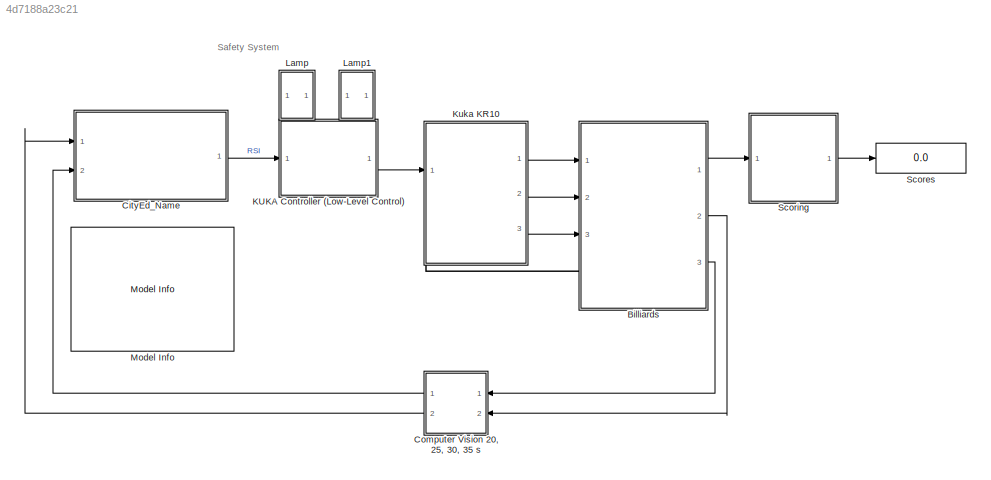
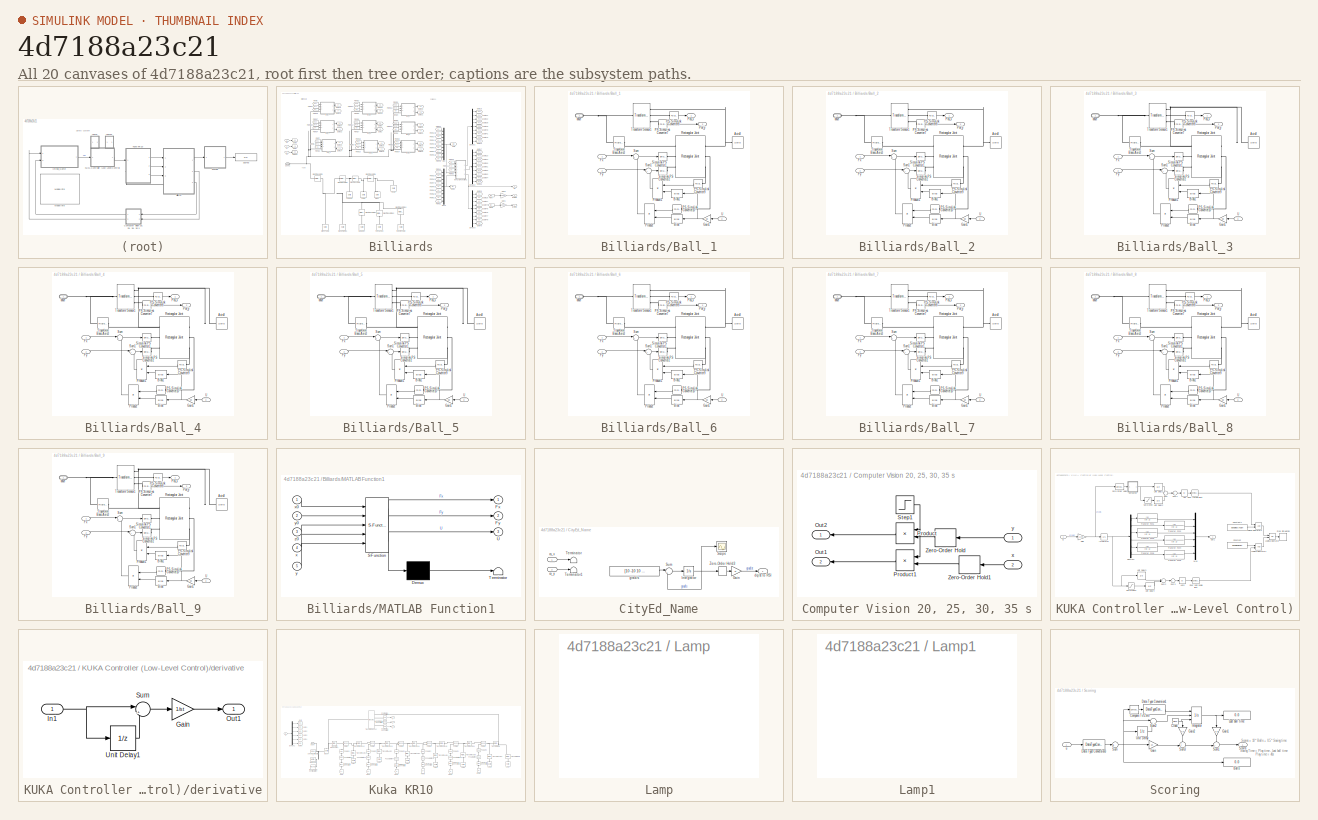
[diagram: thumbnail index - all 20 canvases of the model, root first then tree order]
MODEL slx_4d7188a23c21
KIND model
CONFIG AbsTol = auto
CONFIG EnableMultiTasking = on
CONFIG FixedStep = auto
CONFIG MaxStep = auto
CONFIG MinStep = auto
CONFIG PreLoadFcn = addpath('Bill_Tables_STEP')\naddpath('Skins')\naddpath('Utilities')\naddpath('Kuka_KR10_R1100_STEP')
CONFIG RelTol = 1e-3
CONFIG SampleTimeConstraint = Unconstrained
CONFIG Solver = VariableStepAuto
CONFIG SolverName = VariableStepAuto
CONFIG StartTime = 0.0
CONFIG StopTime = 40
WORKSPACE source: MATLAB code (in-file)
WORKSPACE den = 1.613292710828678e+03  (= 1613.29271083)
WORKSPACE st = 0.004
WORKSPACE Damping = 0.2
WORKSPACE L = 20
WORKSPACE W = 2
WORKSPACE H = 2
WORKSPACE rho = 1000
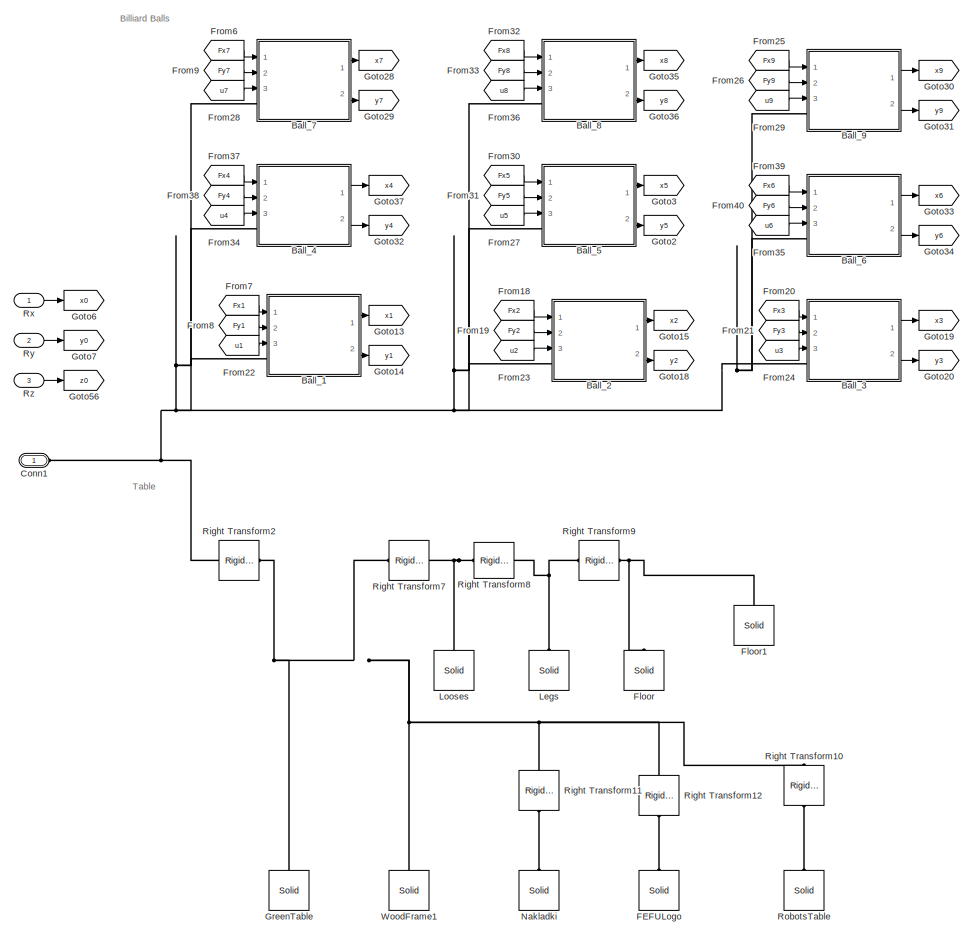
[diagram: Billiards - part 1/2, left side, full height]
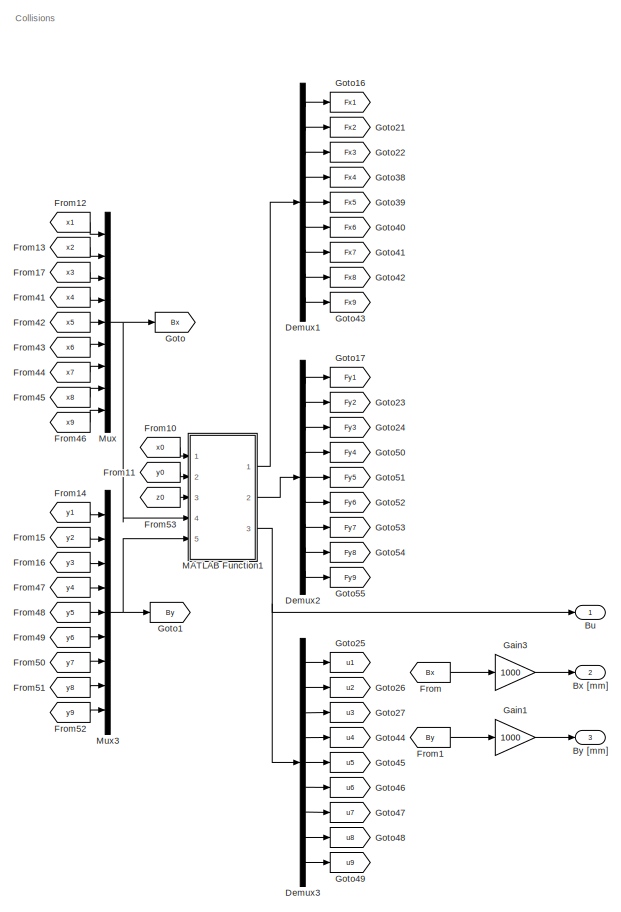
[diagram: Billiards - part 2/2, right side, full height]
BLOCK [SubSystem] Billiards
  Ports = [3, 3, 0, 0, 0, 1]
  RequestExecContextInheritance = off
  Variant = off
BLOCK [SubSystem] Billiards/Ball_1
  Ports = [3, 2, 0, 0, 0, 1]
  RequestExecContextInheritance = off
  Variant = off
BLOCK [Reference] Billiards/Ball_1/Axis8  REF=sm_lib/Body Elements/Solid
  Ports = [0, 0, 0, 0, 0, 0, 1]
  SourceBlock = sm_lib/Body Elements/Solid
  SourceProductBaseCode = MS
  SourceProductName = Simscape Multibody
  SourceType = Solid
BLOCK [Bias] Billiards/Ball_1/Bias
  Bias = d
  SaturateOnIntegerOverflow = off
BLOCK [Bias] Billiards/Ball_1/Bias1
  Bias = d
  SaturateOnIntegerOverflow = off
BLOCK [Inport] Billiards/Ball_1/Fx
  IconDisplay = Port number
BLOCK [Inport] Billiards/Ball_1/Fy
  IconDisplay = Port number
  Port = 2
BLOCK [Gain] Billiards/Ball_1/Gain1
  Gain = pd
  OutDataTypeStr = Inherit: Inherit via internal rule
  ParamDataTypeStr = Inherit: Inherit via internal rule
  SaturateOnIntegerOverflow = off
BLOCK [Reference] Billiards/Ball_1/PS-Simulink Converter10  REF=nesl_utility/PS-Simulink
Converter
  Ports = [0, 1, 0, 0, 0, 1]
  SourceBlock = nesl_utility/PS-Simulink\nConverter
  SourceProductBaseCode = SS
  SourceProductName = Simscape
  SourceType = PS-Simulink\nConverter
BLOCK [Reference] Billiards/Ball_1/PS-Simulink Converter7  REF=nesl_utility/PS-Simulink
Converter
  Ports = [0, 1, 0, 0, 0, 1]
  SourceBlock = nesl_utility/PS-Simulink\nConverter
  SourceProductBaseCode = SS
  SourceProductName = Simscape
  SourceType = PS-Simulink\nConverter
BLOCK [Reference] Billiards/Ball_1/PS-Simulink Converter8  REF=nesl_utility/PS-Simulink
Converter
  Ports = [0, 1, 0, 0, 0, 1]
  SourceBlock = nesl_utility/PS-Simulink\nConverter
  SourceProductBaseCode = SS
  SourceProductName = Simscape
  SourceType = PS-Simulink\nConverter
BLOCK [Reference] Billiards/Ball_1/PS-Simulink Converter9  REF=nesl_utility/PS-Simulink
Converter
  Ports = [0, 1, 0, 0, 0, 1]
  SourceBlock = nesl_utility/PS-Simulink\nConverter
  SourceProductBaseCode = SS
  SourceProductName = Simscape
  SourceType = PS-Simulink\nConverter
BLOCK [Outport] Billiards/Ball_1/Pos_x
  IconDisplay = Port number
BLOCK [Outport] Billiards/Ball_1/Pos_y
  IconDisplay = Port number
  Port = 2
BLOCK [Product] Billiards/Ball_1/Product
  InputSameDT = off
  OutDataTypeStr = Inherit: Inherit via internal rule
  Ports = [2, 1]
  RndMeth = Floor
  SaturateOnIntegerOverflow = off
BLOCK [Product] Billiards/Ball_1/Product1
  InputSameDT = off
  OutDataTypeStr = Inherit: Inherit via internal rule
  Ports = [2, 1]
  RndMeth = Floor
  SaturateOnIntegerOverflow = off
BLOCK [Reference] Billiards/Ball_1/Rectangular Joint  REF=sm_lib/Joints/Rectangular
Joint
  Ports = [0, 0, 0, 0, 0, 3, 3]
  SourceBlock = sm_lib/Joints/Rectangular\nJoint
  SourceProductBaseCode = MS
  SourceProductName = Simscape Multibody
  SourceType = Rectangular\nJoint
BLOCK [Reference] Billiards/Ball_1/Simulink-PS Converter1  REF=nesl_utility/Simulink-PS
Converter
  Ports = [1, 0, 0, 0, 0, 0, 1]
  SourceBlock = nesl_utility/Simulink-PS\nConverter
  SourceProductBaseCode = SS
  SourceProductName = Simscape
  SourceType = Simulink-PS\nConverter
BLOCK [Reference] Billiards/Ball_1/Simulink-PS Converter2  REF=nesl_utility/Simulink-PS
Converter
  Ports = [1, 0, 0, 0, 0, 0, 1]
  SourceBlock = nesl_utility/Simulink-PS\nConverter
  SourceProductBaseCode = SS
  SourceProductName = Simscape
  SourceType = Simulink-PS\nConverter
BLOCK [Sum] Billiards/Ball_1/Sum
  IconShape = round
  InputSameDT = off
  Inputs = |+-
  OutDataTypeStr = Inherit: Inherit via internal rule
  Ports = [2, 1]
  SaturateOnIntegerOverflow = off
BLOCK [Sum] Billiards/Ball_1/Sum1
  IconShape = round
  InputSameDT = off
  Inputs = |+-
  OutDataTypeStr = Inherit: Inherit via internal rule
  Ports = [2, 1]
  SaturateOnIntegerOverflow = off
BLOCK [Reference] Billiards/Ball_1/Transform Base-Axis3  REF=sm_lib/Frames and
Transforms/Rigid
Transform
  Ports = [0, 0, 0, 0, 0, 1, 1]
  SourceBlock = sm_lib/Frames and\nTransforms/Rigid\nTransform
  SourceProductBaseCode = MS
  SourceProductName = Simscape Multibody
  SourceType = Rigid\nTransform
BLOCK [Reference] Billiards/Ball_1/Transform Sensor1  REF=sm_lib/Frames and
Transforms/Transform
Sensor
  Ports = [0, 0, 0, 0, 0, 1, 3]
  SourceBlock = sm_lib/Frames and\nTransforms/Transform\nSensor
  SourceProductBaseCode = MS
  SourceProductName = Simscape Multibody
  SourceType = Transform\nSensor
BLOCK [Inport] Billiards/Ball_1/U
  IconDisplay = Port number
  Port = 3
BLOCK [PMIOPort] Billiards/Ball_1/base
  Port = 1
  Side = Left
BLOCK [SubSystem] Billiards/Ball_2
  Ports = [3, 2, 0, 0, 0, 1]
  RequestExecContextInheritance = off
  Variant = off
BLOCK [Reference] Billiards/Ball_2/Axis8  REF=sm_lib/Body Elements/Solid
  Ports = [0, 0, 0, 0, 0, 0, 1]
  SourceBlock = sm_lib/Body Elements/Solid
  SourceProductBaseCode = MS
  SourceProductName = Simscape Multibody
  SourceType = Solid
BLOCK [Bias] Billiards/Ball_2/Bias
  Bias = d
  SaturateOnIntegerOverflow = off
BLOCK [Bias] Billiards/Ball_2/Bias1
  Bias = d
  SaturateOnIntegerOverflow = off
BLOCK [Inport] Billiards/Ball_2/Fx
  IconDisplay = Port number
BLOCK [Inport] Billiards/Ball_2/Fy
  IconDisplay = Port number
  Port = 2
BLOCK [Gain] Billiards/Ball_2/Gain1
  Gain = pd
  OutDataTypeStr = Inherit: Inherit via internal rule
  ParamDataTypeStr = Inherit: Inherit via internal rule
  SaturateOnIntegerOverflow = off
BLOCK [Reference] Billiards/Ball_2/PS-Simulink Converter10  REF=nesl_utility/PS-Simulink
Converter
  Ports = [0, 1, 0, 0, 0, 1]
  SourceBlock = nesl_utility/PS-Simulink\nConverter
  SourceProductBaseCode = SS
  SourceProductName = Simscape
  SourceType = PS-Simulink\nConverter
BLOCK [Reference] Billiards/Ball_2/PS-Simulink Converter7  REF=nesl_utility/PS-Simulink
Converter
  Ports = [0, 1, 0, 0, 0, 1]
  SourceBlock = nesl_utility/PS-Simulink\nConverter
  SourceProductBaseCode = SS
  SourceProductName = Simscape
  SourceType = PS-Simulink\nConverter
BLOCK [Reference] Billiards/Ball_2/PS-Simulink Converter8  REF=nesl_utility/PS-Simulink
Converter
  Ports = [0, 1, 0, 0, 0, 1]
  SourceBlock = nesl_utility/PS-Simulink\nConverter
  SourceProductBaseCode = SS
  SourceProductName = Simscape
  SourceType = PS-Simulink\nConverter
BLOCK [Reference] Billiards/Ball_2/PS-Simulink Converter9  REF=nesl_utility/PS-Simulink
Converter
  Ports = [0, 1, 0, 0, 0, 1]
  SourceBlock = nesl_utility/PS-Simulink\nConverter
  SourceProductBaseCode = SS
  SourceProductName = Simscape
  SourceType = PS-Simulink\nConverter
BLOCK [Outport] Billiards/Ball_2/Pos_x
  IconDisplay = Port number
BLOCK [Outport] Billiards/Ball_2/Pos_y
  IconDisplay = Port number
  Port = 2
BLOCK [Product] Billiards/Ball_2/Product
  InputSameDT = off
  OutDataTypeStr = Inherit: Inherit via internal rule
  Ports = [2, 1]
  RndMeth = Floor
  SaturateOnIntegerOverflow = off
BLOCK [Product] Billiards/Ball_2/Product1
  InputSameDT = off
  OutDataTypeStr = Inherit: Inherit via internal rule
  Ports = [2, 1]
  RndMeth = Floor
  SaturateOnIntegerOverflow = off
BLOCK [Reference] Billiards/Ball_2/Rectangular Joint  REF=sm_lib/Joints/Rectangular
Joint
  Ports = [0, 0, 0, 0, 0, 3, 3]
  SourceBlock = sm_lib/Joints/Rectangular\nJoint
  SourceProductBaseCode = MS
  SourceProductName = Simscape Multibody
  SourceType = Rectangular\nJoint
BLOCK [Reference] Billiards/Ball_2/Simulink-PS Converter1  REF=nesl_utility/Simulink-PS
Converter
  Ports = [1, 0, 0, 0, 0, 0, 1]
  SourceBlock = nesl_utility/Simulink-PS\nConverter
  SourceProductBaseCode = SS
  SourceProductName = Simscape
  SourceType = Simulink-PS\nConverter
BLOCK [Reference] Billiards/Ball_2/Simulink-PS Converter2  REF=nesl_utility/Simulink-PS
Converter
  Ports = [1, 0, 0, 0, 0, 0, 1]
  SourceBlock = nesl_utility/Simulink-PS\nConverter
  SourceProductBaseCode = SS
  SourceProductName = Simscape
  SourceType = Simulink-PS\nConverter
BLOCK [Sum] Billiards/Ball_2/Sum
  IconShape = round
  InputSameDT = off
  Inputs = |+-
  OutDataTypeStr = Inherit: Inherit via internal rule
  Ports = [2, 1]
  SaturateOnIntegerOverflow = off
BLOCK [Sum] Billiards/Ball_2/Sum1
  IconShape = round
  InputSameDT = off
  Inputs = |+-
  OutDataTypeStr = Inherit: Inherit via internal rule
  Ports = [2, 1]
  SaturateOnIntegerOverflow = off
BLOCK [Reference] Billiards/Ball_2/Transform Base-Axis3  REF=sm_lib/Frames and
Transforms/Rigid
Transform
  Ports = [0, 0, 0, 0, 0, 1, 1]
  SourceBlock = sm_lib/Frames and\nTransforms/Rigid\nTransform
  SourceProductBaseCode = MS
  SourceProductName = Simscape Multibody
  SourceType = Rigid\nTransform
BLOCK [Reference] Billiards/Ball_2/Transform Sensor1  REF=sm_lib/Frames and
Transforms/Transform
Sensor
  Ports = [0, 0, 0, 0, 0, 1, 3]
  SourceBlock = sm_lib/Frames and\nTransforms/Transform\nSensor
  SourceProductBaseCode = MS
  SourceProductName = Simscape Multibody
  SourceType = Transform\nSensor
BLOCK [Inport] Billiards/Ball_2/U
  IconDisplay = Port number
  Port = 3
BLOCK [PMIOPort] Billiards/Ball_2/base
  Port = 1
  Side = Left
BLOCK [SubSystem] Billiards/Ball_3
  Ports = [3, 2, 0, 0, 0, 1]
  RequestExecContextInheritance = off
  Variant = off
BLOCK [Reference] Billiards/Ball_3/Axis8  REF=sm_lib/Body Elements/Solid
  Ports = [0, 0, 0, 0, 0, 0, 1]
  SourceBlock = sm_lib/Body Elements/Solid
  SourceProductBaseCode = MS
  SourceProductName = Simscape Multibody
  SourceType = Solid
BLOCK [Bias] Billiards/Ball_3/Bias
  Bias = d
  SaturateOnIntegerOverflow = off
BLOCK [Bias] Billiards/Ball_3/Bias1
  Bias = d
  SaturateOnIntegerOverflow = off
BLOCK [Inport] Billiards/Ball_3/Fx
  IconDisplay = Port number
BLOCK [Inport] Billiards/Ball_3/Fy
  IconDisplay = Port number
  Port = 2
BLOCK [Gain] Billiards/Ball_3/Gain1
  Gain = pd
  OutDataTypeStr = Inherit: Inherit via internal rule
  ParamDataTypeStr = Inherit: Inherit via internal rule
  SaturateOnIntegerOverflow = off
BLOCK [Reference] Billiards/Ball_3/PS-Simulink Converter10  REF=nesl_utility/PS-Simulink
Converter
  Ports = [0, 1, 0, 0, 0, 1]
  SourceBlock = nesl_utility/PS-Simulink\nConverter
  SourceProductBaseCode = SS
  SourceProductName = Simscape
  SourceType = PS-Simulink\nConverter
BLOCK [Reference] Billiards/Ball_3/PS-Simulink Converter7  REF=nesl_utility/PS-Simulink
Converter
  Ports = [0, 1, 0, 0, 0, 1]
  SourceBlock = nesl_utility/PS-Simulink\nConverter
  SourceProductBaseCode = SS
  SourceProductName = Simscape
  SourceType = PS-Simulink\nConverter
BLOCK [Reference] Billiards/Ball_3/PS-Simulink Converter8  REF=nesl_utility/PS-Simulink
Converter
  Ports = [0, 1, 0, 0, 0, 1]
  SourceBlock = nesl_utility/PS-Simulink\nConverter
  SourceProductBaseCode = SS
  SourceProductName = Simscape
  SourceType = PS-Simulink\nConverter
BLOCK [Reference] Billiards/Ball_3/PS-Simulink Converter9  REF=nesl_utility/PS-Simulink
Converter
  Ports = [0, 1, 0, 0, 0, 1]
  SourceBlock = nesl_utility/PS-Simulink\nConverter
  SourceProductBaseCode = SS
  SourceProductName = Simscape
  SourceType = PS-Simulink\nConverter
BLOCK [Outport] Billiards/Ball_3/Pos_x
  IconDisplay = Port number
BLOCK [Outport] Billiards/Ball_3/Pos_y
  IconDisplay = Port number
  Port = 2
BLOCK [Product] Billiards/Ball_3/Product
  InputSameDT = off
  OutDataTypeStr = Inherit: Inherit via internal rule
  Ports = [2, 1]
  RndMeth = Floor
  SaturateOnIntegerOverflow = off
BLOCK [Product] Billiards/Ball_3/Product1
  InputSameDT = off
  OutDataTypeStr = Inherit: Inherit via internal rule
  Ports = [2, 1]
  RndMeth = Floor
  SaturateOnIntegerOverflow = off
BLOCK [Reference] Billiards/Ball_3/Rectangular Joint  REF=sm_lib/Joints/Rectangular
Joint
  Ports = [0, 0, 0, 0, 0, 3, 3]
  SourceBlock = sm_lib/Joints/Rectangular\nJoint
  SourceProductBaseCode = MS
  SourceProductName = Simscape Multibody
  SourceType = Rectangular\nJoint
BLOCK [Reference] Billiards/Ball_3/Simulink-PS Converter1  REF=nesl_utility/Simulink-PS
Converter
  Ports = [1, 0, 0, 0, 0, 0, 1]
  SourceBlock = nesl_utility/Simulink-PS\nConverter
  SourceProductBaseCode = SS
  SourceProductName = Simscape
  SourceType = Simulink-PS\nConverter
BLOCK [Reference] Billiards/Ball_3/Simulink-PS Converter2  REF=nesl_utility/Simulink-PS
Converter
  Ports = [1, 0, 0, 0, 0, 0, 1]
  SourceBlock = nesl_utility/Simulink-PS\nConverter
  SourceProductBaseCode = SS
  SourceProductName = Simscape
  SourceType = Simulink-PS\nConverter
BLOCK [Sum] Billiards/Ball_3/Sum
  IconShape = round
  InputSameDT = off
  Inputs = |+-
  OutDataTypeStr = Inherit: Inherit via internal rule
  Ports = [2, 1]
  SaturateOnIntegerOverflow = off
BLOCK [Sum] Billiards/Ball_3/Sum1
  IconShape = round
  InputSameDT = off
  Inputs = |+-
  OutDataTypeStr = Inherit: Inherit via internal rule
  Ports = [2, 1]
  SaturateOnIntegerOverflow = off
BLOCK [Reference] Billiards/Ball_3/Transform Base-Axis3  REF=sm_lib/Frames and
Transforms/Rigid
Transform
  Ports = [0, 0, 0, 0, 0, 1, 1]
  SourceBlock = sm_lib/Frames and\nTransforms/Rigid\nTransform
  SourceProductBaseCode = MS
  SourceProductName = Simscape Multibody
  SourceType = Rigid\nTransform
BLOCK [Reference] Billiards/Ball_3/Transform Sensor1  REF=sm_lib/Frames and
Transforms/Transform
Sensor
  Ports = [0, 0, 0, 0, 0, 1, 3]
  SourceBlock = sm_lib/Frames and\nTransforms/Transform\nSensor
  SourceProductBaseCode = MS
  SourceProductName = Simscape Multibody
  SourceType = Transform\nSensor
BLOCK [Inport] Billiards/Ball_3/U
  IconDisplay = Port number
  Port = 3
BLOCK [PMIOPort] Billiards/Ball_3/base
  Port = 1
  Side = Left
BLOCK [SubSystem] Billiards/Ball_4
  Ports = [3, 2, 0, 0, 0, 1]
  RequestExecContextInheritance = off
  Variant = off
BLOCK [Reference] Billiards/Ball_4/Axis8  REF=sm_lib/Body Elements/Solid
  Ports = [0, 0, 0, 0, 0, 0, 1]
  SourceBlock = sm_lib/Body Elements/Solid
  SourceProductBaseCode = MS
  SourceProductName = Simscape Multibody
  SourceType = Solid
BLOCK [Bias] Billiards/Ball_4/Bias
  Bias = d
  SaturateOnIntegerOverflow = off
BLOCK [Bias] Billiards/Ball_4/Bias1
  Bias = d
  SaturateOnIntegerOverflow = off
BLOCK [Inport] Billiards/Ball_4/Fx
  IconDisplay = Port number
BLOCK [Inport] Billiards/Ball_4/Fy
  IconDisplay = Port number
  Port = 2
BLOCK [Gain] Billiards/Ball_4/Gain1
  Gain = pd
  OutDataTypeStr = Inherit: Inherit via internal rule
  ParamDataTypeStr = Inherit: Inherit via internal rule
  SaturateOnIntegerOverflow = off
BLOCK [Reference] Billiards/Ball_4/PS-Simulink Converter10  REF=nesl_utility/PS-Simulink
Converter
  Ports = [0, 1, 0, 0, 0, 1]
  SourceBlock = nesl_utility/PS-Simulink\nConverter
  SourceProductBaseCode = SS
  SourceProductName = Simscape
  SourceType = PS-Simulink\nConverter
BLOCK [Reference] Billiards/Ball_4/PS-Simulink Converter7  REF=nesl_utility/PS-Simulink
Converter
  Ports = [0, 1, 0, 0, 0, 1]
  SourceBlock = nesl_utility/PS-Simulink\nConverter
  SourceProductBaseCode = SS
  SourceProductName = Simscape
  SourceType = PS-Simulink\nConverter
BLOCK [Reference] Billiards/Ball_4/PS-Simulink Converter8  REF=nesl_utility/PS-Simulink
Converter
  Ports = [0, 1, 0, 0, 0, 1]
  SourceBlock = nesl_utility/PS-Simulink\nConverter
  SourceProductBaseCode = SS
  SourceProductName = Simscape
  SourceType = PS-Simulink\nConverter
BLOCK [Reference] Billiards/Ball_4/PS-Simulink Converter9  REF=nesl_utility/PS-Simulink
Converter
  Ports = [0, 1, 0, 0, 0, 1]
  SourceBlock = nesl_utility/PS-Simulink\nConverter
  SourceProductBaseCode = SS
  SourceProductName = Simscape
  SourceType = PS-Simulink\nConverter
BLOCK [Outport] Billiards/Ball_4/Pos_x
  IconDisplay = Port number
BLOCK [Outport] Billiards/Ball_4/Pos_y
  IconDisplay = Port number
  Port = 2
BLOCK [Product] Billiards/Ball_4/Product
  InputSameDT = off
  OutDataTypeStr = Inherit: Inherit via internal rule
  Ports = [2, 1]
  RndMeth = Floor
  SaturateOnIntegerOverflow = off
BLOCK [Product] Billiards/Ball_4/Product1
  InputSameDT = off
  OutDataTypeStr = Inherit: Inherit via internal rule
  Ports = [2, 1]
  RndMeth = Floor
  SaturateOnIntegerOverflow = off
BLOCK [Reference] Billiards/Ball_4/Rectangular Joint  REF=sm_lib/Joints/Rectangular
Joint
  Ports = [0, 0, 0, 0, 0, 3, 3]
  SourceBlock = sm_lib/Joints/Rectangular\nJoint
  SourceProductBaseCode = MS
  SourceProductName = Simscape Multibody
  SourceType = Rectangular\nJoint
BLOCK [Reference] Billiards/Ball_4/Simulink-PS Converter1  REF=nesl_utility/Simulink-PS
Converter
  Ports = [1, 0, 0, 0, 0, 0, 1]
  SourceBlock = nesl_utility/Simulink-PS\nConverter
  SourceProductBaseCode = SS
  SourceProductName = Simscape
  SourceType = Simulink-PS\nConverter
BLOCK [Reference] Billiards/Ball_4/Simulink-PS Converter2  REF=nesl_utility/Simulink-PS
Converter
  Ports = [1, 0, 0, 0, 0, 0, 1]
  SourceBlock = nesl_utility/Simulink-PS\nConverter
  SourceProductBaseCode = SS
  SourceProductName = Simscape
  SourceType = Simulink-PS\nConverter
BLOCK [Sum] Billiards/Ball_4/Sum
  IconShape = round
  InputSameDT = off
  Inputs = |+-
  OutDataTypeStr = Inherit: Inherit via internal rule
  Ports = [2, 1]
  SaturateOnIntegerOverflow = off
BLOCK [Sum] Billiards/Ball_4/Sum1
  IconShape = round
  InputSameDT = off
  Inputs = |+-
  OutDataTypeStr = Inherit: Inherit via internal rule
  Ports = [2, 1]
  SaturateOnIntegerOverflow = off
BLOCK [Reference] Billiards/Ball_4/Transform Base-Axis3  REF=sm_lib/Frames and
Transforms/Rigid
Transform
  Ports = [0, 0, 0, 0, 0, 1, 1]
  SourceBlock = sm_lib/Frames and\nTransforms/Rigid\nTransform
  SourceProductBaseCode = MS
  SourceProductName = Simscape Multibody
  SourceType = Rigid\nTransform
BLOCK [Reference] Billiards/Ball_4/Transform Sensor1  REF=sm_lib/Frames and
Transforms/Transform
Sensor
  Ports = [0, 0, 0, 0, 0, 1, 3]
  SourceBlock = sm_lib/Frames and\nTransforms/Transform\nSensor
  SourceProductBaseCode = MS
  SourceProductName = Simscape Multibody
  SourceType = Transform\nSensor
BLOCK [Inport] Billiards/Ball_4/U
  IconDisplay = Port number
  Port = 3
BLOCK [PMIOPort] Billiards/Ball_4/base
  Port = 1
  Side = Left
BLOCK [SubSystem] Billiards/Ball_5
  Ports = [3, 2, 0, 0, 0, 1]
  RequestExecContextInheritance = off
  Variant = off
BLOCK [Reference] Billiards/Ball_5/Axis8  REF=sm_lib/Body Elements/Solid
  Ports = [0, 0, 0, 0, 0, 0, 1]
  SourceBlock = sm_lib/Body Elements/Solid
  SourceProductBaseCode = MS
  SourceProductName = Simscape Multibody
  SourceType = Solid
BLOCK [Bias] Billiards/Ball_5/Bias
  Bias = d
  SaturateOnIntegerOverflow = off
BLOCK [Bias] Billiards/Ball_5/Bias1
  Bias = d
  SaturateOnIntegerOverflow = off
BLOCK [Inport] Billiards/Ball_5/Fx
  IconDisplay = Port number
BLOCK [Inport] Billiards/Ball_5/Fy
  IconDisplay = Port number
  Port = 2
BLOCK [Gain] Billiards/Ball_5/Gain1
  Gain = pd
  OutDataTypeStr = Inherit: Inherit via internal rule
  ParamDataTypeStr = Inherit: Inherit via internal rule
  SaturateOnIntegerOverflow = off
BLOCK [Reference] Billiards/Ball_5/PS-Simulink Converter10  REF=nesl_utility/PS-Simulink
Converter
  Ports = [0, 1, 0, 0, 0, 1]
  SourceBlock = nesl_utility/PS-Simulink\nConverter
  SourceProductBaseCode = SS
  SourceProductName = Simscape
  SourceType = PS-Simulink\nConverter
BLOCK [Reference] Billiards/Ball_5/PS-Simulink Converter7  REF=nesl_utility/PS-Simulink
Converter
  Ports = [0, 1, 0, 0, 0, 1]
  SourceBlock = nesl_utility/PS-Simulink\nConverter
  SourceProductBaseCode = SS
  SourceProductName = Simscape
  SourceType = PS-Simulink\nConverter
BLOCK [Reference] Billiards/Ball_5/PS-Simulink Converter8  REF=nesl_utility/PS-Simulink
Converter
  Ports = [0, 1, 0, 0, 0, 1]
  SourceBlock = nesl_utility/PS-Simulink\nConverter
  SourceProductBaseCode = SS
  SourceProductName = Simscape
  SourceType = PS-Simulink\nConverter
BLOCK [Reference] Billiards/Ball_5/PS-Simulink Converter9  REF=nesl_utility/PS-Simulink
Converter
  Ports = [0, 1, 0, 0, 0, 1]
  SourceBlock = nesl_utility/PS-Simulink\nConverter
  SourceProductBaseCode = SS
  SourceProductName = Simscape
  SourceType = PS-Simulink\nConverter
BLOCK [Outport] Billiards/Ball_5/Pos_x
  IconDisplay = Port number
BLOCK [Outport] Billiards/Ball_5/Pos_y
  IconDisplay = Port number
  Port = 2
BLOCK [Product] Billiards/Ball_5/Product
  InputSameDT = off
  OutDataTypeStr = Inherit: Inherit via internal rule
  Ports = [2, 1]
  RndMeth = Floor
  SaturateOnIntegerOverflow = off
BLOCK [Product] Billiards/Ball_5/Product1
  InputSameDT = off
  OutDataTypeStr = Inherit: Inherit via internal rule
  Ports = [2, 1]
  RndMeth = Floor
  SaturateOnIntegerOverflow = off
BLOCK [Reference] Billiards/Ball_5/Rectangular Joint  REF=sm_lib/Joints/Rectangular
Joint
  Ports = [0, 0, 0, 0, 0, 3, 3]
  SourceBlock = sm_lib/Joints/Rectangular\nJoint
  SourceProductBaseCode = MS
  SourceProductName = Simscape Multibody
  SourceType = Rectangular\nJoint
BLOCK [Reference] Billiards/Ball_5/Simulink-PS Converter1  REF=nesl_utility/Simulink-PS
Converter
  Ports = [1, 0, 0, 0, 0, 0, 1]
  SourceBlock = nesl_utility/Simulink-PS\nConverter
  SourceProductBaseCode = SS
  SourceProductName = Simscape
  SourceType = Simulink-PS\nConverter
BLOCK [Reference] Billiards/Ball_5/Simulink-PS Converter2  REF=nesl_utility/Simulink-PS
Converter
  Ports = [1, 0, 0, 0, 0, 0, 1]
  SourceBlock = nesl_utility/Simulink-PS\nConverter
  SourceProductBaseCode = SS
  SourceProductName = Simscape
  SourceType = Simulink-PS\nConverter
BLOCK [Sum] Billiards/Ball_5/Sum
  IconShape = round
  InputSameDT = off
  Inputs = |+-
  OutDataTypeStr = Inherit: Inherit via internal rule
  Ports = [2, 1]
  SaturateOnIntegerOverflow = off
BLOCK [Sum] Billiards/Ball_5/Sum1
  IconShape = round
  InputSameDT = off
  Inputs = |+-
  OutDataTypeStr = Inherit: Inherit via internal rule
  Ports = [2, 1]
  SaturateOnIntegerOverflow = off
BLOCK [Reference] Billiards/Ball_5/Transform Base-Axis3  REF=sm_lib/Frames and
Transforms/Rigid
Transform
  Ports = [0, 0, 0, 0, 0, 1, 1]
  SourceBlock = sm_lib/Frames and\nTransforms/Rigid\nTransform
  SourceProductBaseCode = MS
  SourceProductName = Simscape Multibody
  SourceType = Rigid\nTransform
BLOCK [Reference] Billiards/Ball_5/Transform Sensor1  REF=sm_lib/Frames and
Transforms/Transform
Sensor
  Ports = [0, 0, 0, 0, 0, 1, 3]
  SourceBlock = sm_lib/Frames and\nTransforms/Transform\nSensor
  SourceProductBaseCode = MS
  SourceProductName = Simscape Multibody
  SourceType = Transform\nSensor
BLOCK [Inport] Billiards/Ball_5/U
  IconDisplay = Port number
  Port = 3
BLOCK [PMIOPort] Billiards/Ball_5/base
  Port = 1
  Side = Left
BLOCK [SubSystem] Billiards/Ball_6
  Ports = [3, 2, 0, 0, 0, 1]
  RequestExecContextInheritance = off
  Variant = off
BLOCK [Reference] Billiards/Ball_6/Axis8  REF=sm_lib/Body Elements/Solid
  Ports = [0, 0, 0, 0, 0, 0, 1]
  SourceBlock = sm_lib/Body Elements/Solid
  SourceProductBaseCode = MS
  SourceProductName = Simscape Multibody
  SourceType = Solid
BLOCK [Bias] Billiards/Ball_6/Bias
  Bias = d
  SaturateOnIntegerOverflow = off
BLOCK [Bias] Billiards/Ball_6/Bias1
  Bias = d
  SaturateOnIntegerOverflow = off
BLOCK [Inport] Billiards/Ball_6/Fx
  IconDisplay = Port number
BLOCK [Inport] Billiards/Ball_6/Fy
  IconDisplay = Port number
  Port = 2
BLOCK [Gain] Billiards/Ball_6/Gain1
  Gain = pd
  OutDataTypeStr = Inherit: Inherit via internal rule
  ParamDataTypeStr = Inherit: Inherit via internal rule
  SaturateOnIntegerOverflow = off
BLOCK [Reference] Billiards/Ball_6/PS-Simulink Converter10  REF=nesl_utility/PS-Simulink
Converter
  Ports = [0, 1, 0, 0, 0, 1]
  SourceBlock = nesl_utility/PS-Simulink\nConverter
  SourceProductBaseCode = SS
  SourceProductName = Simscape
  SourceType = PS-Simulink\nConverter
BLOCK [Reference] Billiards/Ball_6/PS-Simulink Converter7  REF=nesl_utility/PS-Simulink
Converter
  Ports = [0, 1, 0, 0, 0, 1]
  SourceBlock = nesl_utility/PS-Simulink\nConverter
  SourceProductBaseCode = SS
  SourceProductName = Simscape
  SourceType = PS-Simulink\nConverter
BLOCK [Reference] Billiards/Ball_6/PS-Simulink Converter8  REF=nesl_utility/PS-Simulink
Converter
  Ports = [0, 1, 0, 0, 0, 1]
  SourceBlock = nesl_utility/PS-Simulink\nConverter
  SourceProductBaseCode = SS
  SourceProductName = Simscape
  SourceType = PS-Simulink\nConverter
BLOCK [Reference] Billiards/Ball_6/PS-Simulink Converter9  REF=nesl_utility/PS-Simulink
Converter
  Ports = [0, 1, 0, 0, 0, 1]
  SourceBlock = nesl_utility/PS-Simulink\nConverter
  SourceProductBaseCode = SS
  SourceProductName = Simscape
  SourceType = PS-Simulink\nConverter
BLOCK [Outport] Billiards/Ball_6/Pos_x
  IconDisplay = Port number
BLOCK [Outport] Billiards/Ball_6/Pos_y
  IconDisplay = Port number
  Port = 2
BLOCK [Product] Billiards/Ball_6/Product
  InputSameDT = off
  OutDataTypeStr = Inherit: Inherit via internal rule
  Ports = [2, 1]
  RndMeth = Floor
  SaturateOnIntegerOverflow = off
BLOCK [Product] Billiards/Ball_6/Product1
  InputSameDT = off
  OutDataTypeStr = Inherit: Inherit via internal rule
  Ports = [2, 1]
  RndMeth = Floor
  SaturateOnIntegerOverflow = off
BLOCK [Reference] Billiards/Ball_6/Rectangular Joint  REF=sm_lib/Joints/Rectangular
Joint
  Ports = [0, 0, 0, 0, 0, 3, 3]
  SourceBlock = sm_lib/Joints/Rectangular\nJoint
  SourceProductBaseCode = MS
  SourceProductName = Simscape Multibody
  SourceType = Rectangular\nJoint
BLOCK [Reference] Billiards/Ball_6/Simulink-PS Converter1  REF=nesl_utility/Simulink-PS
Converter
  Ports = [1, 0, 0, 0, 0, 0, 1]
  SourceBlock = nesl_utility/Simulink-PS\nConverter
  SourceProductBaseCode = SS
  SourceProductName = Simscape
  SourceType = Simulink-PS\nConverter
BLOCK [Reference] Billiards/Ball_6/Simulink-PS Converter2  REF=nesl_utility/Simulink-PS
Converter
  Ports = [1, 0, 0, 0, 0, 0, 1]
  SourceBlock = nesl_utility/Simulink-PS\nConverter
  SourceProductBaseCode = SS
  SourceProductName = Simscape
  SourceType = Simulink-PS\nConverter
BLOCK [Sum] Billiards/Ball_6/Sum
  IconShape = round
  InputSameDT = off
  Inputs = |+-
  OutDataTypeStr = Inherit: Inherit via internal rule
  Ports = [2, 1]
  SaturateOnIntegerOverflow = off
BLOCK [Sum] Billiards/Ball_6/Sum1
  IconShape = round
  InputSameDT = off
  Inputs = |+-
  OutDataTypeStr = Inherit: Inherit via internal rule
  Ports = [2, 1]
  SaturateOnIntegerOverflow = off
BLOCK [Reference] Billiards/Ball_6/Transform Base-Axis3  REF=sm_lib/Frames and
Transforms/Rigid
Transform
  Ports = [0, 0, 0, 0, 0, 1, 1]
  SourceBlock = sm_lib/Frames and\nTransforms/Rigid\nTransform
  SourceProductBaseCode = MS
  SourceProductName = Simscape Multibody
  SourceType = Rigid\nTransform
BLOCK [Reference] Billiards/Ball_6/Transform Sensor1  REF=sm_lib/Frames and
Transforms/Transform
Sensor
  Ports = [0, 0, 0, 0, 0, 1, 3]
  SourceBlock = sm_lib/Frames and\nTransforms/Transform\nSensor
  SourceProductBaseCode = MS
  SourceProductName = Simscape Multibody
  SourceType = Transform\nSensor
BLOCK [Inport] Billiards/Ball_6/U
  IconDisplay = Port number
  Port = 3
BLOCK [PMIOPort] Billiards/Ball_6/base
  Port = 1
  Side = Left
BLOCK [SubSystem] Billiards/Ball_7
  Ports = [3, 2, 0, 0, 0, 1]
  RequestExecContextInheritance = off
  Variant = off
BLOCK [Reference] Billiards/Ball_7/Axis8  REF=sm_lib/Body Elements/Solid
  Ports = [0, 0, 0, 0, 0, 0, 1]
  SourceBlock = sm_lib/Body Elements/Solid
  SourceProductBaseCode = MS
  SourceProductName = Simscape Multibody
  SourceType = Solid
BLOCK [Bias] Billiards/Ball_7/Bias
  Bias = d
  SaturateOnIntegerOverflow = off
BLOCK [Bias] Billiards/Ball_7/Bias1
  Bias = d
  SaturateOnIntegerOverflow = off
BLOCK [Inport] Billiards/Ball_7/Fx
  IconDisplay = Port number
BLOCK [Inport] Billiards/Ball_7/Fy
  IconDisplay = Port number
  Port = 2
BLOCK [Gain] Billiards/Ball_7/Gain1
  Gain = pd
  OutDataTypeStr = Inherit: Inherit via internal rule
  ParamDataTypeStr = Inherit: Inherit via internal rule
  SaturateOnIntegerOverflow = off
BLOCK [Reference] Billiards/Ball_7/PS-Simulink Converter10  REF=nesl_utility/PS-Simulink
Converter
  Ports = [0, 1, 0, 0, 0, 1]
  SourceBlock = nesl_utility/PS-Simulink\nConverter
  SourceProductBaseCode = SS
  SourceProductName = Simscape
  SourceType = PS-Simulink\nConverter
BLOCK [Reference] Billiards/Ball_7/PS-Simulink Converter7  REF=nesl_utility/PS-Simulink
Converter
  Ports = [0, 1, 0, 0, 0, 1]
  SourceBlock = nesl_utility/PS-Simulink\nConverter
  SourceProductBaseCode = SS
  SourceProductName = Simscape
  SourceType = PS-Simulink\nConverter
BLOCK [Reference] Billiards/Ball_7/PS-Simulink Converter8  REF=nesl_utility/PS-Simulink
Converter
  Ports = [0, 1, 0, 0, 0, 1]
  SourceBlock = nesl_utility/PS-Simulink\nConverter
  SourceProductBaseCode = SS
  SourceProductName = Simscape
  SourceType = PS-Simulink\nConverter
BLOCK [Reference] Billiards/Ball_7/PS-Simulink Converter9  REF=nesl_utility/PS-Simulink
Converter
  Ports = [0, 1, 0, 0, 0, 1]
  SourceBlock = nesl_utility/PS-Simulink\nConverter
  SourceProductBaseCode = SS
  SourceProductName = Simscape
  SourceType = PS-Simulink\nConverter
BLOCK [Outport] Billiards/Ball_7/Pos_x
  IconDisplay = Port number
BLOCK [Outport] Billiards/Ball_7/Pos_y
  IconDisplay = Port number
  Port = 2
BLOCK [Product] Billiards/Ball_7/Product
  InputSameDT = off
  OutDataTypeStr = Inherit: Inherit via internal rule
  Ports = [2, 1]
  RndMeth = Floor
  SaturateOnIntegerOverflow = off
BLOCK [Product] Billiards/Ball_7/Product1
  InputSameDT = off
  OutDataTypeStr = Inherit: Inherit via internal rule
  Ports = [2, 1]
  RndMeth = Floor
  SaturateOnIntegerOverflow = off
BLOCK [Reference] Billiards/Ball_7/Rectangular Joint  REF=sm_lib/Joints/Rectangular
Joint
  Ports = [0, 0, 0, 0, 0, 3, 3]
  SourceBlock = sm_lib/Joints/Rectangular\nJoint
  SourceProductBaseCode = MS
  SourceProductName = Simscape Multibody
  SourceType = Rectangular\nJoint
BLOCK [Reference] Billiards/Ball_7/Simulink-PS Converter1  REF=nesl_utility/Simulink-PS
Converter
  Ports = [1, 0, 0, 0, 0, 0, 1]
  SourceBlock = nesl_utility/Simulink-PS\nConverter
  SourceProductBaseCode = SS
  SourceProductName = Simscape
  SourceType = Simulink-PS\nConverter
BLOCK [Reference] Billiards/Ball_7/Simulink-PS Converter2  REF=nesl_utility/Simulink-PS
Converter
  Ports = [1, 0, 0, 0, 0, 0, 1]
  SourceBlock = nesl_utility/Simulink-PS\nConverter
  SourceProductBaseCode = SS
  SourceProductName = Simscape
  SourceType = Simulink-PS\nConverter
BLOCK [Sum] Billiards/Ball_7/Sum
  IconShape = round
  InputSameDT = off
  Inputs = |+-
  OutDataTypeStr = Inherit: Inherit via internal rule
  Ports = [2, 1]
  SaturateOnIntegerOverflow = off
BLOCK [Sum] Billiards/Ball_7/Sum1
  IconShape = round
  InputSameDT = off
  Inputs = |+-
  OutDataTypeStr = Inherit: Inherit via internal rule
  Ports = [2, 1]
  SaturateOnIntegerOverflow = off
BLOCK [Reference] Billiards/Ball_7/Transform Base-Axis3  REF=sm_lib/Frames and
Transforms/Rigid
Transform
  Ports = [0, 0, 0, 0, 0, 1, 1]
  SourceBlock = sm_lib/Frames and\nTransforms/Rigid\nTransform
  SourceProductBaseCode = MS
  SourceProductName = Simscape Multibody
  SourceType = Rigid\nTransform
BLOCK [Reference] Billiards/Ball_7/Transform Sensor1  REF=sm_lib/Frames and
Transforms/Transform
Sensor
  Ports = [0, 0, 0, 0, 0, 1, 3]
  SourceBlock = sm_lib/Frames and\nTransforms/Transform\nSensor
  SourceProductBaseCode = MS
  SourceProductName = Simscape Multibody
  SourceType = Transform\nSensor
BLOCK [Inport] Billiards/Ball_7/U
  IconDisplay = Port number
  Port = 3
BLOCK [PMIOPort] Billiards/Ball_7/base
  Port = 1
  Side = Left
BLOCK [SubSystem] Billiards/Ball_8
  Ports = [3, 2, 0, 0, 0, 1]
  RequestExecContextInheritance = off
  Variant = off
BLOCK [Reference] Billiards/Ball_8/Axis8  REF=sm_lib/Body Elements/Solid
  Ports = [0, 0, 0, 0, 0, 0, 1]
  SourceBlock = sm_lib/Body Elements/Solid
  SourceProductBaseCode = MS
  SourceProductName = Simscape Multibody
  SourceType = Solid
BLOCK [Bias] Billiards/Ball_8/Bias
  Bias = d
  SaturateOnIntegerOverflow = off
BLOCK [Bias] Billiards/Ball_8/Bias1
  Bias = d
  SaturateOnIntegerOverflow = off
BLOCK [Inport] Billiards/Ball_8/Fx
  IconDisplay = Port number
BLOCK [Inport] Billiards/Ball_8/Fy
  IconDisplay = Port number
  Port = 2
BLOCK [Gain] Billiards/Ball_8/Gain1
  Gain = pd
  OutDataTypeStr = Inherit: Inherit via internal rule
  ParamDataTypeStr = Inherit: Inherit via internal rule
  SaturateOnIntegerOverflow = off
BLOCK [Reference] Billiards/Ball_8/PS-Simulink Converter10  REF=nesl_utility/PS-Simulink
Converter
  Ports = [0, 1, 0, 0, 0, 1]
  SourceBlock = nesl_utility/PS-Simulink\nConverter
  SourceProductBaseCode = SS
  SourceProductName = Simscape
  SourceType = PS-Simulink\nConverter
BLOCK [Reference] Billiards/Ball_8/PS-Simulink Converter7  REF=nesl_utility/PS-Simulink
Converter
  Ports = [0, 1, 0, 0, 0, 1]
  SourceBlock = nesl_utility/PS-Simulink\nConverter
  SourceProductBaseCode = SS
  SourceProductName = Simscape
  SourceType = PS-Simulink\nConverter
BLOCK [Reference] Billiards/Ball_8/PS-Simulink Converter8  REF=nesl_utility/PS-Simulink
Converter
  Ports = [0, 1, 0, 0, 0, 1]
  SourceBlock = nesl_utility/PS-Simulink\nConverter
  SourceProductBaseCode = SS
  SourceProductName = Simscape
  SourceType = PS-Simulink\nConverter
BLOCK [Reference] Billiards/Ball_8/PS-Simulink Converter9  REF=nesl_utility/PS-Simulink
Converter
  Ports = [0, 1, 0, 0, 0, 1]
  SourceBlock = nesl_utility/PS-Simulink\nConverter
  SourceProductBaseCode = SS
  SourceProductName = Simscape
  SourceType = PS-Simulink\nConverter
BLOCK [Outport] Billiards/Ball_8/Pos_x
  IconDisplay = Port number
BLOCK [Outport] Billiards/Ball_8/Pos_y
  IconDisplay = Port number
  Port = 2
BLOCK [Product] Billiards/Ball_8/Product
  InputSameDT = off
  OutDataTypeStr = Inherit: Inherit via internal rule
  Ports = [2, 1]
  RndMeth = Floor
  SaturateOnIntegerOverflow = off
BLOCK [Product] Billiards/Ball_8/Product1
  InputSameDT = off
  OutDataTypeStr = Inherit: Inherit via internal rule
  Ports = [2, 1]
  RndMeth = Floor
  SaturateOnIntegerOverflow = off
BLOCK [Reference] Billiards/Ball_8/Rectangular Joint  REF=sm_lib/Joints/Rectangular
Joint
  Ports = [0, 0, 0, 0, 0, 3, 3]
  SourceBlock = sm_lib/Joints/Rectangular\nJoint
  SourceProductBaseCode = MS
  SourceProductName = Simscape Multibody
  SourceType = Rectangular\nJoint
BLOCK [Reference] Billiards/Ball_8/Simulink-PS Converter1  REF=nesl_utility/Simulink-PS
Converter
  Ports = [1, 0, 0, 0, 0, 0, 1]
  SourceBlock = nesl_utility/Simulink-PS\nConverter
  SourceProductBaseCode = SS
  SourceProductName = Simscape
  SourceType = Simulink-PS\nConverter
BLOCK [Reference] Billiards/Ball_8/Simulink-PS Converter2  REF=nesl_utility/Simulink-PS
Converter
  Ports = [1, 0, 0, 0, 0, 0, 1]
  SourceBlock = nesl_utility/Simulink-PS\nConverter
  SourceProductBaseCode = SS
  SourceProductName = Simscape
  SourceType = Simulink-PS\nConverter
BLOCK [Sum] Billiards/Ball_8/Sum
  IconShape = round
  InputSameDT = off
  Inputs = |+-
  OutDataTypeStr = Inherit: Inherit via internal rule
  Ports = [2, 1]
  SaturateOnIntegerOverflow = off
BLOCK [Sum] Billiards/Ball_8/Sum1
  IconShape = round
  InputSameDT = off
  Inputs = |+-
  OutDataTypeStr = Inherit: Inherit via internal rule
  Ports = [2, 1]
  SaturateOnIntegerOverflow = off
BLOCK [Reference] Billiards/Ball_8/Transform Base-Axis3  REF=sm_lib/Frames and
Transforms/Rigid
Transform
  Ports = [0, 0, 0, 0, 0, 1, 1]
  SourceBlock = sm_lib/Frames and\nTransforms/Rigid\nTransform
  SourceProductBaseCode = MS
  SourceProductName = Simscape Multibody
  SourceType = Rigid\nTransform
BLOCK [Reference] Billiards/Ball_8/Transform Sensor1  REF=sm_lib/Frames and
Transforms/Transform
Sensor
  Ports = [0, 0, 0, 0, 0, 1, 3]
  SourceBlock = sm_lib/Frames and\nTransforms/Transform\nSensor
  SourceProductBaseCode = MS
  SourceProductName = Simscape Multibody
  SourceType = Transform\nSensor
BLOCK [Inport] Billiards/Ball_8/U
  IconDisplay = Port number
  Port = 3
BLOCK [PMIOPort] Billiards/Ball_8/base
  Port = 1
  Side = Left
BLOCK [SubSystem] Billiards/Ball_9
  Ports = [3, 2, 0, 0, 0, 1]
  RequestExecContextInheritance = off
  Variant = off
BLOCK [Reference] Billiards/Ball_9/Axis8  REF=sm_lib/Body Elements/Solid
  Ports = [0, 0, 0, 0, 0, 0, 1]
  SourceBlock = sm_lib/Body Elements/Solid
  SourceProductBaseCode = MS
  SourceProductName = Simscape Multibody
  SourceType = Solid
BLOCK [Bias] Billiards/Ball_9/Bias
  Bias = d
  SaturateOnIntegerOverflow = off
BLOCK [Bias] Billiards/Ball_9/Bias1
  Bias = d
  SaturateOnIntegerOverflow = off
BLOCK [Inport] Billiards/Ball_9/Fx
  IconDisplay = Port number
BLOCK [Inport] Billiards/Ball_9/Fy
  IconDisplay = Port number
  Port = 2
BLOCK [Gain] Billiards/Ball_9/Gain1
  Gain = pd
  OutDataTypeStr = Inherit: Inherit via internal rule
  ParamDataTypeStr = Inherit: Inherit via internal rule
  SaturateOnIntegerOverflow = off
BLOCK [Reference] Billiards/Ball_9/PS-Simulink Converter10  REF=nesl_utility/PS-Simulink
Converter
  Ports = [0, 1, 0, 0, 0, 1]
  SourceBlock = nesl_utility/PS-Simulink\nConverter
  SourceProductBaseCode = SS
  SourceProductName = Simscape
  SourceType = PS-Simulink\nConverter
BLOCK [Reference] Billiards/Ball_9/PS-Simulink Converter7  REF=nesl_utility/PS-Simulink
Converter
  Ports = [0, 1, 0, 0, 0, 1]
  SourceBlock = nesl_utility/PS-Simulink\nConverter
  SourceProductBaseCode = SS
  SourceProductName = Simscape
  SourceType = PS-Simulink\nConverter
BLOCK [Reference] Billiards/Ball_9/PS-Simulink Converter8  REF=nesl_utility/PS-Simulink
Converter
  Ports = [0, 1, 0, 0, 0, 1]
  SourceBlock = nesl_utility/PS-Simulink\nConverter
  SourceProductBaseCode = SS
  SourceProductName = Simscape
  SourceType = PS-Simulink\nConverter
BLOCK [Reference] Billiards/Ball_9/PS-Simulink Converter9  REF=nesl_utility/PS-Simulink
Converter
  Ports = [0, 1, 0, 0, 0, 1]
  SourceBlock = nesl_utility/PS-Simulink\nConverter
  SourceProductBaseCode = SS
  SourceProductName = Simscape
  SourceType = PS-Simulink\nConverter
BLOCK [Outport] Billiards/Ball_9/Pos_x
  IconDisplay = Port number
BLOCK [Outport] Billiards/Ball_9/Pos_y
  IconDisplay = Port number
  Port = 2
BLOCK [Product] Billiards/Ball_9/Product
  InputSameDT = off
  OutDataTypeStr = Inherit: Inherit via internal rule
  Ports = [2, 1]
  RndMeth = Floor
  SaturateOnIntegerOverflow = off
BLOCK [Product] Billiards/Ball_9/Product1
  InputSameDT = off
  OutDataTypeStr = Inherit: Inherit via internal rule
  Ports = [2, 1]
  RndMeth = Floor
  SaturateOnIntegerOverflow = off
BLOCK [Reference] Billiards/Ball_9/Rectangular Joint  REF=sm_lib/Joints/Rectangular
Joint
  Ports = [0, 0, 0, 0, 0, 3, 3]
  SourceBlock = sm_lib/Joints/Rectangular\nJoint
  SourceProductBaseCode = MS
  SourceProductName = Simscape Multibody
  SourceType = Rectangular\nJoint
BLOCK [Reference] Billiards/Ball_9/Simulink-PS Converter1  REF=nesl_utility/Simulink-PS
Converter
  Ports = [1, 0, 0, 0, 0, 0, 1]
  SourceBlock = nesl_utility/Simulink-PS\nConverter
  SourceProductBaseCode = SS
  SourceProductName = Simscape
  SourceType = Simulink-PS\nConverter
BLOCK [Reference] Billiards/Ball_9/Simulink-PS Converter2  REF=nesl_utility/Simulink-PS
Converter
  Ports = [1, 0, 0, 0, 0, 0, 1]
  SourceBlock = nesl_utility/Simulink-PS\nConverter
  SourceProductBaseCode = SS
  SourceProductName = Simscape
  SourceType = Simulink-PS\nConverter
BLOCK [Sum] Billiards/Ball_9/Sum
  IconShape = round
  InputSameDT = off
  Inputs = |+-
  OutDataTypeStr = Inherit: Inherit via internal rule
  Ports = [2, 1]
  SaturateOnIntegerOverflow = off
BLOCK [Sum] Billiards/Ball_9/Sum1
  IconShape = round
  InputSameDT = off
  Inputs = |+-
  OutDataTypeStr = Inherit: Inherit via internal rule
  Ports = [2, 1]
  SaturateOnIntegerOverflow = off
BLOCK [Reference] Billiards/Ball_9/Transform Base-Axis3  REF=sm_lib/Frames and
Transforms/Rigid
Transform
  Ports = [0, 0, 0, 0, 0, 1, 1]
  SourceBlock = sm_lib/Frames and\nTransforms/Rigid\nTransform
  SourceProductBaseCode = MS
  SourceProductName = Simscape Multibody
  SourceType = Rigid\nTransform
BLOCK [Reference] Billiards/Ball_9/Transform Sensor1  REF=sm_lib/Frames and
Transforms/Transform
Sensor
  Ports = [0, 0, 0, 0, 0, 1, 3]
  SourceBlock = sm_lib/Frames and\nTransforms/Transform\nSensor
  SourceProductBaseCode = MS
  SourceProductName = Simscape Multibody
  SourceType = Transform\nSensor
BLOCK [Inport] Billiards/Ball_9/U
  IconDisplay = Port number
  Port = 3
BLOCK [PMIOPort] Billiards/Ball_9/base
  Port = 1
  Side = Left
BLOCK [Outport] Billiards/Bu
  IconDisplay = Port number
BLOCK [Outport] Billiards/Bx [mm]
  IconDisplay = Port number
  Port = 2
BLOCK [Outport] Billiards/By [mm]
  IconDisplay = Port number
  Port = 3
BLOCK [PMIOPort] Billiards/Conn1
  Port = 1
  Side = Left
BLOCK [Demux] Billiards/Demux1
  DisplayOption = bar
  Outputs = 9
  Ports = [1, 9]
BLOCK [Demux] Billiards/Demux2
  DisplayOption = bar
  Outputs = 9
  Ports = [1, 9]
BLOCK [Demux] Billiards/Demux3
  DisplayOption = bar
  Outputs = 9
  Ports = [1, 9]
BLOCK [Reference] Billiards/FEFULogo  REF=sm_lib/Body Elements/Solid
  Ports = [0, 0, 0, 0, 0, 0, 1]
  SourceBlock = sm_lib/Body Elements/Solid
  SourceProductBaseCode = MS
  SourceProductName = Simscape Multibody
  SourceType = Solid
BLOCK [Reference] Billiards/Floor  REF=sm_lib/Body Elements/Solid
  Ports = [0, 0, 0, 0, 0, 0, 1]
  SourceBlock = sm_lib/Body Elements/Solid
  SourceProductBaseCode = MS
  SourceProductName = Simscape Multibody
  SourceType = Solid
BLOCK [Reference] Billiards/Floor1  REF=sm_lib/Body Elements/Solid
  Ports = [0, 0, 0, 0, 0, 0, 1]
  SourceBlock = sm_lib/Body Elements/Solid
  SourceProductBaseCode = MS
  SourceProductName = Simscape Multibody
  SourceType = Solid
BLOCK [From] Billiards/From
  GotoTag = Bx
BLOCK [From] Billiards/From1
  GotoTag = By
BLOCK [From] Billiards/From10
  GotoTag = x0
BLOCK [From] Billiards/From11
  GotoTag = y0
BLOCK [From] Billiards/From12
  GotoTag = x1
BLOCK [From] Billiards/From13
  GotoTag = x2
BLOCK [From] Billiards/From14
  GotoTag = y1
BLOCK [From] Billiards/From15
  GotoTag = y2
BLOCK [From] Billiards/From16
  GotoTag = y3
BLOCK [From] Billiards/From17
  GotoTag = x3
BLOCK [From] Billiards/From18
  GotoTag = Fx2
BLOCK [From] Billiards/From19
  GotoTag = Fy2
BLOCK [From] Billiards/From20
  GotoTag = Fx3
BLOCK [From] Billiards/From21
  GotoTag = Fy3
BLOCK [From] Billiards/From22
  GotoTag = u1
BLOCK [From] Billiards/From23
  GotoTag = u2
BLOCK [From] Billiards/From24
  GotoTag = u3
BLOCK [From] Billiards/From25
  GotoTag = Fx9
BLOCK [From] Billiards/From26
  GotoTag = Fy9
BLOCK [From] Billiards/From27
  GotoTag = u5
BLOCK [From] Billiards/From28
  GotoTag = u7
BLOCK [From] Billiards/From29
  GotoTag = u9
BLOCK [From] Billiards/From30
  GotoTag = Fx5
BLOCK [From] Billiards/From31
  GotoTag = Fy5
BLOCK [From] Billiards/From32
  GotoTag = Fx8
BLOCK [From] Billiards/From33
  GotoTag = Fy8
BLOCK [From] Billiards/From34
  GotoTag = u4
BLOCK [From] Billiards/From35
  GotoTag = u6
BLOCK [From] Billiards/From36
  GotoTag = u8
BLOCK [From] Billiards/From37
  GotoTag = Fx4
BLOCK [From] Billiards/From38
  GotoTag = Fy4
BLOCK [From] Billiards/From39
  GotoTag = Fx6
BLOCK [From] Billiards/From40
  GotoTag = Fy6
BLOCK [From] Billiards/From41
  GotoTag = x4
BLOCK [From] Billiards/From42
  GotoTag = x5
BLOCK [From] Billiards/From43
  GotoTag = x6
BLOCK [From] Billiards/From44
  GotoTag = x7
BLOCK [From] Billiards/From45
  GotoTag = x8
BLOCK [From] Billiards/From46
  GotoTag = x9
BLOCK [From] Billiards/From47
  GotoTag = y4
BLOCK [From] Billiards/From48
  GotoTag = y5
BLOCK [From] Billiards/From49
  GotoTag = y6
BLOCK [From] Billiards/From50
  GotoTag = y7
BLOCK [From] Billiards/From51
  GotoTag = y8
BLOCK [From] Billiards/From52
  GotoTag = y9
BLOCK [From] Billiards/From53
  GotoTag = z0
BLOCK [From] Billiards/From6
  GotoTag = Fx7
BLOCK [From] Billiards/From7
  GotoTag = Fx1
BLOCK [From] Billiards/From8
  GotoTag = Fy1
BLOCK [From] Billiards/From9
  GotoTag = Fy7
BLOCK [Gain] Billiards/Gain1
  Gain = 1000
  OutDataTypeStr = Inherit: Inherit via internal rule
  ParamDataTypeStr = Inherit: Inherit via internal rule
  SaturateOnIntegerOverflow = off
BLOCK [Gain] Billiards/Gain3
  Gain = 1000
  OutDataTypeStr = Inherit: Inherit via internal rule
  ParamDataTypeStr = Inherit: Inherit via internal rule
  SaturateOnIntegerOverflow = off
BLOCK [Goto] Billiards/Goto
  GotoTag = Bx
BLOCK [Goto] Billiards/Goto1
  GotoTag = By
BLOCK [Goto] Billiards/Goto13
  GotoTag = x1
BLOCK [Goto] Billiards/Goto14
  GotoTag = y1
BLOCK [Goto] Billiards/Goto15
  GotoTag = x2
BLOCK [Goto] Billiards/Goto16
  GotoTag = Fx1
BLOCK [Goto] Billiards/Goto17
  GotoTag = Fy1
BLOCK [Goto] Billiards/Goto18
  GotoTag = y2
BLOCK [Goto] Billiards/Goto19
  GotoTag = x3
BLOCK [Goto] Billiards/Goto2
  GotoTag = y5
BLOCK [Goto] Billiards/Goto20
  GotoTag = y3
BLOCK [Goto] Billiards/Goto21
  GotoTag = Fx2
BLOCK [Goto] Billiards/Goto22
  GotoTag = Fx3
BLOCK [Goto] Billiards/Goto23
  GotoTag = Fy2
BLOCK [Goto] Billiards/Goto24
  GotoTag = Fy3
BLOCK [Goto] Billiards/Goto25
  GotoTag = u1
BLOCK [Goto] Billiards/Goto26
  GotoTag = u2
BLOCK [Goto] Billiards/Goto27
  GotoTag = u3
BLOCK [Goto] Billiards/Goto28
  GotoTag = x7
BLOCK [Goto] Billiards/Goto29
  GotoTag = y7
BLOCK [Goto] Billiards/Goto3
  GotoTag = x5
BLOCK [Goto] Billiards/Goto30
  GotoTag = x9
BLOCK [Goto] Billiards/Goto31
  GotoTag = y9
BLOCK [Goto] Billiards/Goto32
  GotoTag = y4
BLOCK [Goto] Billiards/Goto33
  GotoTag = x6
BLOCK [Goto] Billiards/Goto34
  GotoTag = y6
BLOCK [Goto] Billiards/Goto35
  GotoTag = x8
BLOCK [Goto] Billiards/Goto36
  GotoTag = y8
BLOCK [Goto] Billiards/Goto37
  GotoTag = x4
BLOCK [Goto] Billiards/Goto38
  GotoTag = Fx4
BLOCK [Goto] Billiards/Goto39
  GotoTag = Fx5
BLOCK [Goto] Billiards/Goto40
  GotoTag = Fx6
BLOCK [Goto] Billiards/Goto41
  GotoTag = Fx7
BLOCK [Goto] Billiards/Goto42
  GotoTag = Fx8
BLOCK [Goto] Billiards/Goto43
  GotoTag = Fx9
BLOCK [Goto] Billiards/Goto44
  GotoTag = u4
BLOCK [Goto] Billiards/Goto45
  GotoTag = u5
BLOCK [Goto] Billiards/Goto46
  GotoTag = u6
BLOCK [Goto] Billiards/Goto47
  GotoTag = u7
BLOCK [Goto] Billiards/Goto48
  GotoTag = u8
BLOCK [Goto] Billiards/Goto49
  GotoTag = u9
BLOCK [Goto] Billiards/Goto50
  GotoTag = Fy4
BLOCK [Goto] Billiards/Goto51
  GotoTag = Fy5
BLOCK [Goto] Billiards/Goto52
  GotoTag = Fy6
BLOCK [Goto] Billiards/Goto53
  GotoTag = Fy7
BLOCK [Goto] Billiards/Goto54
  GotoTag = Fy8
BLOCK [Goto] Billiards/Goto55
  GotoTag = Fy9
BLOCK [Goto] Billiards/Goto56
  GotoTag = z0
BLOCK [Goto] Billiards/Goto6
  GotoTag = x0
BLOCK [Goto] Billiards/Goto7
  GotoTag = y0
BLOCK [Reference] Billiards/GreenTable  REF=sm_lib/Body Elements/Solid
  Ports = [0, 0, 0, 0, 0, 0, 1]
  SourceBlock = sm_lib/Body Elements/Solid
  SourceProductBaseCode = MS
  SourceProductName = Simscape Multibody
  SourceType = Solid
BLOCK [Reference] Billiards/Legs  REF=sm_lib/Body Elements/Solid
  Ports = [0, 0, 0, 0, 0, 0, 1]
  SourceBlock = sm_lib/Body Elements/Solid
  SourceProductBaseCode = MS
  SourceProductName = Simscape Multibody
  SourceType = Solid
BLOCK [Reference] Billiards/Looses  REF=sm_lib/Body Elements/Solid
  Ports = [0, 0, 0, 0, 0, 0, 1]
  SourceBlock = sm_lib/Body Elements/Solid
  SourceProductBaseCode = MS
  SourceProductName = Simscape Multibody
  SourceType = Solid
BLOCK [SubSystem] Billiards/MATLAB Function1
  ErrorFcn = Stateflow.Translate.translate
  PermitHierarchicalResolution = ExplicitOnly
  Ports = [5, 3]
  RequestExecContextInheritance = off
  SFBlockType = MATLAB Function
  TreatAsAtomicUnit = on
  Variant = off
BLOCK [Demux] Billiards/MATLAB Function1/ Demux 
  Outputs = 1
  Ports = [1, 1]
BLOCK [S-Function] Billiards/MATLAB Function1/ SFunction 
  EnableBusSupport = on
  FunctionName = sf_sfun
  PortCounts = [5 4]
  Ports = [5, 4]
  SFcnIsStateOwnerBlock = off
  SFunctionDeploymentMode = off
  Tag = Stateflow S-Function kr_billiards_debug 5
BLOCK [Terminator] Billiards/MATLAB Function1/ Terminator 
BLOCK [Outport] Billiards/MATLAB Function1/Fx
  IconDisplay = Port number
BLOCK [Outport] Billiards/MATLAB Function1/Fy
  IconDisplay = Port number
  Port = 2
BLOCK [Outport] Billiards/MATLAB Function1/U
  IconDisplay = Port number
  Port = 3
BLOCK [Inport] Billiards/MATLAB Function1/x
  IconDisplay = Port number
  Port = 4
BLOCK [Inport] Billiards/MATLAB Function1/x0
  IconDisplay = Port number
BLOCK [Inport] Billiards/MATLAB Function1/y
  IconDisplay = Port number
  Port = 5
BLOCK [Inport] Billiards/MATLAB Function1/y0
  IconDisplay = Port number
  Port = 2
BLOCK [Inport] Billiards/MATLAB Function1/z0
  IconDisplay = Port number
  Port = 3
BLOCK [Mux] Billiards/Mux
  DisplayOption = bar
  Inputs = 9
  Ports = [9, 1]
BLOCK [Mux] Billiards/Mux3
  DisplayOption = bar
  Inputs = 9
  Ports = [9, 1]
BLOCK [Reference] Billiards/Nakladki  REF=sm_lib/Body Elements/Solid
  Ports = [0, 0, 0, 0, 0, 0, 1]
  SourceBlock = sm_lib/Body Elements/Solid
  SourceProductBaseCode = MS
  SourceProductName = Simscape Multibody
  SourceType = Solid
BLOCK [Reference] Billiards/Right Transform10  REF=sm_lib/Frames and
Transforms/Rigid
Transform
  Ports = [0, 0, 0, 0, 0, 1, 1]
  SourceBlock = sm_lib/Frames and\nTransforms/Rigid\nTransform
  SourceProductBaseCode = MS
  SourceProductName = Simscape Multibody
  SourceType = Rigid\nTransform
BLOCK [Reference] Billiards/Right Transform11  REF=sm_lib/Frames and
Transforms/Rigid
Transform
  Ports = [0, 0, 0, 0, 0, 1, 1]
  SourceBlock = sm_lib/Frames and\nTransforms/Rigid\nTransform
  SourceProductBaseCode = MS
  SourceProductName = Simscape Multibody
  SourceType = Rigid\nTransform
BLOCK [Reference] Billiards/Right Transform12  REF=sm_lib/Frames and
Transforms/Rigid
Transform
  Ports = [0, 0, 0, 0, 0, 1, 1]
  SourceBlock = sm_lib/Frames and\nTransforms/Rigid\nTransform
  SourceProductBaseCode = MS
  SourceProductName = Simscape Multibody
  SourceType = Rigid\nTransform
BLOCK [Reference] Billiards/Right Transform2  REF=sm_lib/Frames and
Transforms/Rigid
Transform
  Ports = [0, 0, 0, 0, 0, 1, 1]
  SourceBlock = sm_lib/Frames and\nTransforms/Rigid\nTransform
  SourceProductBaseCode = MS
  SourceProductName = Simscape Multibody
  SourceType = Rigid\nTransform
BLOCK [Reference] Billiards/Right Transform7  REF=sm_lib/Frames and
Transforms/Rigid
Transform
  Ports = [0, 0, 0, 0, 0, 1, 1]
  SourceBlock = sm_lib/Frames and\nTransforms/Rigid\nTransform
  SourceProductBaseCode = MS
  SourceProductName = Simscape Multibody
  SourceType = Rigid\nTransform
BLOCK [Reference] Billiards/Right Transform8  REF=sm_lib/Frames and
Transforms/Rigid
Transform
  Ports = [0, 0, 0, 0, 0, 1, 1]
  SourceBlock = sm_lib/Frames and\nTransforms/Rigid\nTransform
  SourceProductBaseCode = MS
  SourceProductName = Simscape Multibody
  SourceType = Rigid\nTransform
BLOCK [Reference] Billiards/Right Transform9  REF=sm_lib/Frames and
Transforms/Rigid
Transform
  Ports = [0, 0, 0, 0, 0, 1, 1]
  SourceBlock = sm_lib/Frames and\nTransforms/Rigid\nTransform
  SourceProductBaseCode = MS
  SourceProductName = Simscape Multibody
  SourceType = Rigid\nTransform
BLOCK [Reference] Billiards/RobotsTable  REF=sm_lib/Body Elements/Solid
  Ports = [0, 0, 0, 0, 0, 0, 1]
  SourceBlock = sm_lib/Body Elements/Solid
  SourceProductBaseCode = MS
  SourceProductName = Simscape Multibody
  SourceType = Solid
BLOCK [Inport] Billiards/Rx
  IconDisplay = Port number
BLOCK [Inport] Billiards/Ry
  IconDisplay = Port number
  Port = 2
BLOCK [Inport] Billiards/Rz
  IconDisplay = Port number
  Port = 3
BLOCK [Reference] Billiards/WoodFrame1  REF=sm_lib/Body Elements/Solid
  Ports = [0, 0, 0, 0, 0, 0, 1]
  SourceBlock = sm_lib/Body Elements/Solid
  SourceProductBaseCode = MS
  SourceProductName = Simscape Multibody
  SourceType = Solid
BLOCK [SubSystem] CityEd_Name
  Ports = [2, 1]
  RequestExecContextInheritance = off
  TreatAsAtomicUnit = on
  Variant = off
BLOCK [Gain] CityEd_Name/Gain
  Gain = st
  OutDataTypeStr = Inherit: Inherit via internal rule
  ParamDataTypeStr = Inherit: Inherit via internal rule
  SaturateOnIntegerOverflow = off
BLOCK [Integrator] CityEd_Name/Integrator
  Ports = [1, 1]
BLOCK [Scope] CityEd_Name/Scope
  NumInputPorts = 1
  Ports = [1]
  ScopeSpecificationString = Simulink.scopes.TimeScopeBlockCfg('CurrentConfiguration', extmgr.ConfigurationSet(extmgr.Configuration('Core','General UI',true),extmgr.Configuration('Core','Source UI',true),extmgr.Configuration('Sources','WiredSimulink',true),extmgr.Configuration('Visuals','Time Domain',true,'SerializedDisplays',{struct('MinYLimReal','-12.49997','MaxYLimReal','12.49997','YLabelReal','','MinYLimMag','0.00000','Ma...<+1442ch>
BLOCK [Sum] CityEd_Name/Sum
  IconShape = round
  InputSameDT = off
  Inputs = |+-
  OutDataTypeStr = Inherit: Inherit via internal rule
  Ports = [2, 1]
  SaturateOnIntegerOverflow = off
BLOCK [Terminator] CityEd_Name/Terminator
BLOCK [Terminator] CityEd_Name/Terminator1
BLOCK [ZeroOrderHold] CityEd_Name/Zero-Order Hold3
  SampleTime = st
BLOCK [Inport] CityEd_Name/cv_x
  IconDisplay = Port number
BLOCK [Inport] CityEd_Name/cv_y
  IconDisplay = Port number
  Port = 2
BLOCK [Outport] CityEd_Name/dq//st to RSI
  IconDisplay = Port number
BLOCK [Constant] CityEd_Name/grad//s
  Value = [10 -10 10 10 10 10]
BLOCK [SubSystem] Computer Vision 20, 25, 30, 35 s
  Ports = [2, 2]
  RequestExecContextInheritance = off
  Variant = off
BLOCK [Outport] Computer Vision 20, 25, 30, 35 s/Out1
  IconDisplay = Port number
  Port = 2
BLOCK [Outport] Computer Vision 20, 25, 30, 35 s/Out2
  IconDisplay = Port number
BLOCK [Product] Computer Vision 20, 25, 30, 35 s/Product
  InputSameDT = off
  OutDataTypeStr = Inherit: Inherit via internal rule
  Ports = [2, 1]
  RndMeth = Floor
  SaturateOnIntegerOverflow = off
BLOCK [Product] Computer Vision 20, 25, 30, 35 s/Product1
  InputSameDT = off
  OutDataTypeStr = Inherit: Inherit via internal rule
  Ports = [2, 1]
  RndMeth = Floor
  SaturateOnIntegerOverflow = off
BLOCK [Step] Computer Vision 20, 25, 30, 35 s/Step1
  SampleTime = 0
  Time = 20
BLOCK [ZeroOrderHold] Computer Vision 20, 25, 30, 35 s/Zero-Order Hold
  SampleTime = 5
BLOCK [ZeroOrderHold] Computer Vision 20, 25, 30, 35 s/Zero-Order Hold1
  SampleTime = 5
BLOCK [Inport] Computer Vision 20, 25, 30, 35 s/x
  IconDisplay = Port number
  Port = 2
BLOCK [Inport] Computer Vision 20, 25, 30, 35 s/y
  IconDisplay = Port number
BLOCK [SubSystem] KUKA Controller (Low-Level Control)
  Ports = [1, 1]
  RequestExecContextInheritance = off
  Variant = off
BLOCK [Abs] KUKA Controller (Low-Level Control)/Abs
  SaturateOnIntegerOverflow = off
BLOCK [Abs] KUKA Controller (Low-Level Control)/Abs1
  SaturateOnIntegerOverflow = off
BLOCK [Constant] KUKA Controller (Low-Level Control)/Constant
  Value = EnableKinLim
BLOCK [Constant] KUKA Controller (Low-Level Control)/Constant1
  Value = EnableDynLim
BLOCK [Demux] KUKA Controller (Low-Level Control)/Demux2
  DisplayOption = bar
  Outputs = 6
  Ports = [1, 6]
BLOCK [Gain] KUKA Controller (Low-Level Control)/Gain
  Gain = 1/st
  OutDataTypeStr = Inherit: Inherit via internal rule
  ParamDataTypeStr = Inherit: Inherit via internal rule
  SaturateOnIntegerOverflow = off
BLOCK [Integrator] KUKA Controller (Low-Level Control)/Integrator
  Ports = [1, 1]
BLOCK [Logic] KUKA Controller (Low-Level Control)/Logical Operator
  AllPortsSameDT = off
  Operator = OR
  OutDataTypeStr = boolean
  Ports = [2, 1]
BLOCK [Logic] KUKA Controller (Low-Level Control)/Logical Operator1
  AllPortsSameDT = off
  OutDataTypeStr = boolean
  Ports = [2, 1]
BLOCK [Logic] KUKA Controller (Low-Level Control)/Logical Operator2
  AllPortsSameDT = off
  OutDataTypeStr = boolean
  Ports = [2, 1]
BLOCK [Mux] KUKA Controller (Low-Level Control)/Mux
  DisplayOption = bar
  Inputs = 6
  Ports = [6, 1]
BLOCK [Outport] KUKA Controller (Low-Level Control)/Out1
  IconDisplay = Port number
BLOCK [Reference] KUKA Controller (Low-Level Control)/Over axis angle limit  REF=simulink/Logic and Bit
Operations/Compare
To Constant
  Ports = [1, 1]
  SourceBlock = simulink/Logic and Bit\nOperations/Compare\nTo Constant
  SourceProductBaseCode = SL
  SourceProductName = Simulink
  SourceType = Compare To Constant
BLOCK [Reference] KUKA Controller (Low-Level Control)/Over torque limit  REF=simulink/Logic and Bit
Operations/Compare
To Constant
  Ports = [1, 1]
  SourceBlock = simulink/Logic and Bit\nOperations/Compare\nTo Constant
  SourceProductBaseCode = SL
  SourceProductName = Simulink
  SourceType = Compare To Constant
BLOCK [Inport] KUKA Controller (Low-Level Control)/Q
  IconDisplay = Port number
BLOCK [Saturate] KUKA Controller (Low-Level Control)/Saturation
  InputPortMap = u0
  LowerLimit = -[acc1 acc2 acc3 acc4 acc5 acc6]
  Ports = [1, 1]
  UpperLimit = [acc1 acc2 acc3 acc4 acc5 acc6]
BLOCK [Saturate] KUKA Controller (Low-Level Control)/Saturation1
  InputPortMap = u0
  LowerLimit = [min1 min2 min3 min4 min5 min6]
  Ports = [1, 1]
  UpperLimit = [max1 max2 max3 max4 max5 max6]
BLOCK [Stop] KUKA Controller (Low-Level Control)/Stop Simulation
BLOCK [Sum] KUKA Controller (Low-Level Control)/Sum
  IconShape = round
  InputSameDT = off
  Inputs = +|-
  OutDataTypeStr = Inherit: Inherit via internal rule
  Ports = [2, 1]
  SaturateOnIntegerOverflow = off
BLOCK [Sum] KUKA Controller (Low-Level Control)/Sum1
  IconShape = round
  InputSameDT = off
  Inputs = +
  OutDataTypeStr = Inherit: Inherit via internal rule
  Ports = [1, 1]
  SaturateOnIntegerOverflow = off
BLOCK [Sum] KUKA Controller (Low-Level Control)/Sum2
  IconShape = round
  InputSameDT = off
  Inputs = +|-
  OutDataTypeStr = Inherit: Inherit via internal rule
  Ports = [2, 1]
  SaturateOnIntegerOverflow = off
BLOCK [Sum] KUKA Controller (Low-Level Control)/Sum3
  IconShape = round
  InputSameDT = off
  Inputs = +
  OutDataTypeStr = Inherit: Inherit via internal rule
  Ports = [1, 1]
  SaturateOnIntegerOverflow = off
BLOCK [TransferFcn] KUKA Controller (Low-Level Control)/Transfer Fcn1
  Denominator = [st 1]
BLOCK [TransferFcn] KUKA Controller (Low-Level Control)/Transfer Fcn2
  Denominator = [st 1]
BLOCK [TransferFcn] KUKA Controller (Low-Level Control)/Transfer Fcn3
  Denominator = [st 1]
BLOCK [TransferFcn] KUKA Controller (Low-Level Control)/Transfer Fcn4
  Denominator = [st 1]
BLOCK [TransferFcn] KUKA Controller (Low-Level Control)/Transfer Fcn5
  Denominator = [st 1]
BLOCK [TransferFcn] KUKA Controller (Low-Level Control)/Transfer Fcn6
  Denominator = [st 1]
BLOCK [UnitDelay] KUKA Controller (Low-Level Control)/Unit Delay1
  InputProcessing = Elements as channels (sample based)
  SampleTime = st
BLOCK [UnitDelay] KUKA Controller (Low-Level Control)/Unit Delay2
  InputProcessing = Elements as channels (sample based)
  SampleTime = st
BLOCK [UnitDelay] KUKA Controller (Low-Level Control)/Unit Delay3
  InputProcessing = Elements as channels (sample based)
  SampleTime = st
BLOCK [UnitDelay] KUKA Controller (Low-Level Control)/Unit Delay4
  InputProcessing = Elements as channels (sample based)
  SampleTime = st
BLOCK [ZeroOrderHold] KUKA Controller (Low-Level Control)/Zero-Order Hold1
  SampleTime = st
BLOCK [SubSystem] KUKA Controller (Low-Level Control)/derivative
  Ports = [1, 1]
  RequestExecContextInheritance = off
  Variant = off
BLOCK [Gain] KUKA Controller (Low-Level Control)/derivative/Gain
  Gain = 1/st
  OutDataTypeStr = Inherit: Inherit via internal rule
  ParamDataTypeStr = Inherit: Inherit via internal rule
  SaturateOnIntegerOverflow = off
BLOCK [Inport] KUKA Controller (Low-Level Control)/derivative/In1
  IconDisplay = Port number
BLOCK [Outport] KUKA Controller (Low-Level Control)/derivative/Out1
  IconDisplay = Port number
BLOCK [Sum] KUKA Controller (Low-Level Control)/derivative/Sum
  IconShape = round
  InputSameDT = off
  Inputs = |+-
  OutDataTypeStr = Inherit: Inherit via internal rule
  Ports = [2, 1]
  SaturateOnIntegerOverflow = off
BLOCK [UnitDelay] KUKA Controller (Low-Level Control)/derivative/Unit Delay1
  InputProcessing = Elements as channels (sample based)
  SampleTime = st
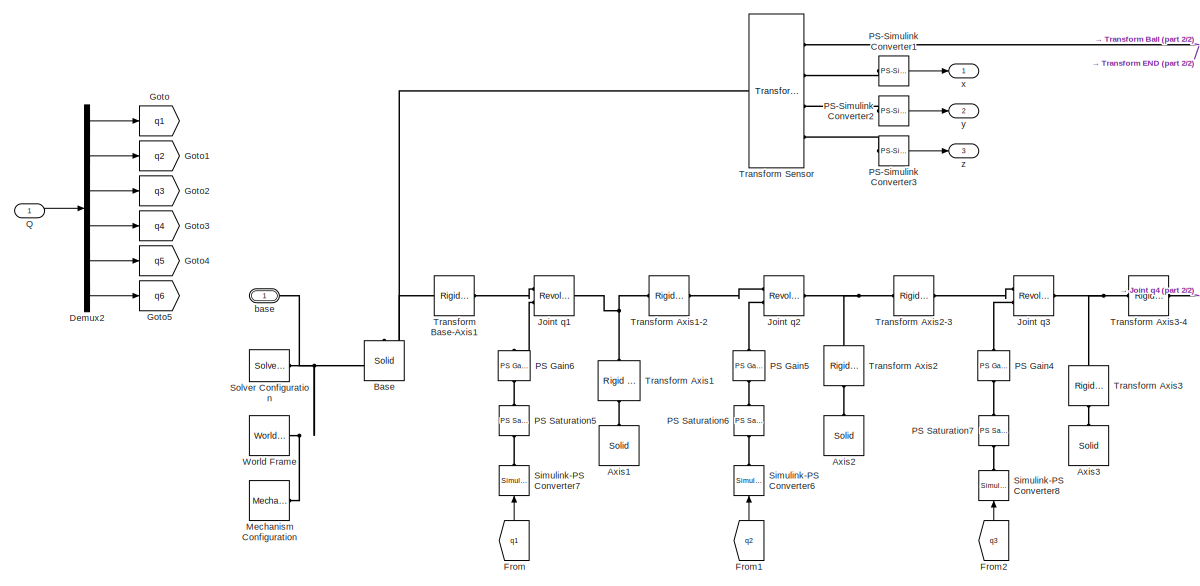
[diagram: Kuka KR10 - part 1/2, left side, full height]
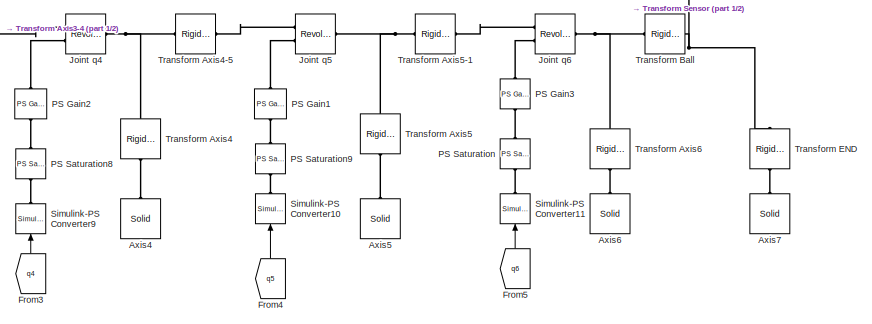
[diagram: Kuka KR10 - part 2/2, bottom right region]
BLOCK [SubSystem] Kuka KR10
  Ports = [1, 3, 0, 0, 0, 1]
  RequestExecContextInheritance = off
  Variant = off
BLOCK [Reference] Kuka KR10/ Joint q1  REF=sm_lib/Joints/Revolute Joint
  Ports = [0, 0, 0, 0, 0, 2, 1]
  SourceBlock = sm_lib/Joints/Revolute Joint
  SourceProductBaseCode = MS
  SourceProductName = Simscape Multibody
  SourceType = Revolute Joint
BLOCK [Reference] Kuka KR10/ Joint q2  REF=sm_lib/Joints/Revolute Joint
  Ports = [0, 0, 0, 0, 0, 2, 1]
  SourceBlock = sm_lib/Joints/Revolute Joint
  SourceProductBaseCode = MS
  SourceProductName = Simscape Multibody
  SourceType = Revolute Joint
BLOCK [Reference] Kuka KR10/ Joint q3  REF=sm_lib/Joints/Revolute Joint
  Ports = [0, 0, 0, 0, 0, 2, 1]
  SourceBlock = sm_lib/Joints/Revolute Joint
  SourceProductBaseCode = MS
  SourceProductName = Simscape Multibody
  SourceType = Revolute Joint
BLOCK [Reference] Kuka KR10/ Joint q4  REF=sm_lib/Joints/Revolute Joint
  Ports = [0, 0, 0, 0, 0, 2, 1]
  SourceBlock = sm_lib/Joints/Revolute Joint
  SourceProductBaseCode = MS
  SourceProductName = Simscape Multibody
  SourceType = Revolute Joint
BLOCK [Reference] Kuka KR10/ Joint q5  REF=sm_lib/Joints/Revolute Joint
  Ports = [0, 0, 0, 0, 0, 2, 1]
  SourceBlock = sm_lib/Joints/Revolute Joint
  SourceProductBaseCode = MS
  SourceProductName = Simscape Multibody
  SourceType = Revolute Joint
BLOCK [Reference] Kuka KR10/ Joint q6  REF=sm_lib/Joints/Revolute Joint
  Ports = [0, 0, 0, 0, 0, 2, 1]
  SourceBlock = sm_lib/Joints/Revolute Joint
  SourceProductBaseCode = MS
  SourceProductName = Simscape Multibody
  SourceType = Revolute Joint
BLOCK [Reference] Kuka KR10/Axis1  REF=sm_lib/Body Elements/Solid
  Ports = [0, 0, 0, 0, 0, 0, 1]
  SourceBlock = sm_lib/Body Elements/Solid
  SourceProductBaseCode = MS
  SourceProductName = Simscape Multibody
  SourceType = Solid
BLOCK [Reference] Kuka KR10/Axis2  REF=sm_lib/Body Elements/Solid
  Ports = [0, 0, 0, 0, 0, 0, 1]
  SourceBlock = sm_lib/Body Elements/Solid
  SourceProductBaseCode = MS
  SourceProductName = Simscape Multibody
  SourceType = Solid
BLOCK [Reference] Kuka KR10/Axis3  REF=sm_lib/Body Elements/Solid
  Ports = [0, 0, 0, 0, 0, 0, 1]
  SourceBlock = sm_lib/Body Elements/Solid
  SourceProductBaseCode = MS
  SourceProductName = Simscape Multibody
  SourceType = Solid
BLOCK [Reference] Kuka KR10/Axis4  REF=sm_lib/Body Elements/Solid
  Ports = [0, 0, 0, 0, 0, 0, 1]
  SourceBlock = sm_lib/Body Elements/Solid
  SourceProductBaseCode = MS
  SourceProductName = Simscape Multibody
  SourceType = Solid
BLOCK [Reference] Kuka KR10/Axis5  REF=sm_lib/Body Elements/Solid
  Ports = [0, 0, 0, 0, 0, 0, 1]
  SourceBlock = sm_lib/Body Elements/Solid
  SourceProductBaseCode = MS
  SourceProductName = Simscape Multibody
  SourceType = Solid
BLOCK [Reference] Kuka KR10/Axis6  REF=sm_lib/Body Elements/Solid
  Ports = [0, 0, 0, 0, 0, 0, 1]
  SourceBlock = sm_lib/Body Elements/Solid
  SourceProductBaseCode = MS
  SourceProductName = Simscape Multibody
  SourceType = Solid
BLOCK [Reference] Kuka KR10/Axis7  REF=sm_lib/Body Elements/Solid
  Ports = [0, 0, 0, 0, 0, 0, 1]
  SourceBlock = sm_lib/Body Elements/Solid
  SourceProductBaseCode = MS
  SourceProductName = Simscape Multibody
  SourceType = Solid
BLOCK [Reference] Kuka KR10/Base  REF=sm_lib/Body Elements/Solid
  Ports = [0, 0, 0, 0, 0, 0, 1]
  SourceBlock = sm_lib/Body Elements/Solid
  SourceProductBaseCode = MS
  SourceProductName = Simscape Multibody
  SourceType = Solid
BLOCK [Demux] Kuka KR10/Demux2
  DisplayOption = bar
  Outputs = 6
  Ports = [1, 6]
BLOCK [From] Kuka KR10/From
  GotoTag = q1
BLOCK [From] Kuka KR10/From1
  GotoTag = q2
BLOCK [From] Kuka KR10/From2
  GotoTag = q3
BLOCK [From] Kuka KR10/From3
  GotoTag = q4
BLOCK [From] Kuka KR10/From4
  GotoTag = q5
BLOCK [From] Kuka KR10/From5
  GotoTag = q6
BLOCK [Goto] Kuka KR10/Goto
  GotoTag = q1
BLOCK [Goto] Kuka KR10/Goto1
  GotoTag = q2
BLOCK [Goto] Kuka KR10/Goto2
  GotoTag = q3
BLOCK [Goto] Kuka KR10/Goto3
  GotoTag = q4
BLOCK [Goto] Kuka KR10/Goto4
  GotoTag = q5
BLOCK [Goto] Kuka KR10/Goto5
  GotoTag = q6
BLOCK [Reference] Kuka KR10/Mechanism Configuration  REF=sm_lib/Utilities/Mechanism
Configuration
  Ports = [0, 0, 0, 0, 0, 0, 1]
  SourceBlock = sm_lib/Utilities/Mechanism\nConfiguration
  SourceProductBaseCode = MS
  SourceProductName = Simscape Multibody
  SourceType = Mechanism\nConfiguration
BLOCK [Reference] Kuka KR10/PS Gain1  REF=fl_lib/Physical Signals/Functions/PS Gain
  Ports = [0, 0, 0, 0, 0, 1, 1]
  SourceBlock = fl_lib/Physical Signals/Functions/PS Gain
  SourceProductBaseCode = SS
  SourceProductName = Simscape
  SourceType = PS Gain
BLOCK [Reference] Kuka KR10/PS Gain2  REF=fl_lib/Physical Signals/Functions/PS Gain
  Ports = [0, 0, 0, 0, 0, 1, 1]
  SourceBlock = fl_lib/Physical Signals/Functions/PS Gain
  SourceProductBaseCode = SS
  SourceProductName = Simscape
  SourceType = PS Gain
BLOCK [Reference] Kuka KR10/PS Gain3  REF=fl_lib/Physical Signals/Functions/PS Gain
  Ports = [0, 0, 0, 0, 0, 1, 1]
  SourceBlock = fl_lib/Physical Signals/Functions/PS Gain
  SourceProductBaseCode = SS
  SourceProductName = Simscape
  SourceType = PS Gain
BLOCK [Reference] Kuka KR10/PS Gain4  REF=fl_lib/Physical Signals/Functions/PS Gain
  Ports = [0, 0, 0, 0, 0, 1, 1]
  SourceBlock = fl_lib/Physical Signals/Functions/PS Gain
  SourceProductBaseCode = SS
  SourceProductName = Simscape
  SourceType = PS Gain
BLOCK [Reference] Kuka KR10/PS Gain5  REF=fl_lib/Physical Signals/Functions/PS Gain
  Ports = [0, 0, 0, 0, 0, 1, 1]
  SourceBlock = fl_lib/Physical Signals/Functions/PS Gain
  SourceProductBaseCode = SS
  SourceProductName = Simscape
  SourceType = PS Gain
BLOCK [Reference] Kuka KR10/PS Gain6  REF=fl_lib/Physical Signals/Functions/PS Gain
  Ports = [0, 0, 0, 0, 0, 1, 1]
  SourceBlock = fl_lib/Physical Signals/Functions/PS Gain
  SourceProductBaseCode = SS
  SourceProductName = Simscape
  SourceType = PS Gain
BLOCK [Reference] Kuka KR10/PS Saturation  REF=fl_lib/Physical Signals/Nonlinear Operators/PS Saturation
  Ports = [0, 0, 0, 0, 0, 1, 1]
  SourceBlock = fl_lib/Physical Signals/Nonlinear Operators/PS Saturation
  SourceProductBaseCode = SS
  SourceProductName = Simscape
  SourceType = PS Saturation
BLOCK [Reference] Kuka KR10/PS Saturation5  REF=fl_lib/Physical Signals/Nonlinear Operators/PS Saturation
  Ports = [0, 0, 0, 0, 0, 1, 1]
  SourceBlock = fl_lib/Physical Signals/Nonlinear Operators/PS Saturation
  SourceProductBaseCode = SS
  SourceProductName = Simscape
  SourceType = PS Saturation
BLOCK [Reference] Kuka KR10/PS Saturation6  REF=fl_lib/Physical Signals/Nonlinear Operators/PS Saturation
  Ports = [0, 0, 0, 0, 0, 1, 1]
  SourceBlock = fl_lib/Physical Signals/Nonlinear Operators/PS Saturation
  SourceProductBaseCode = SS
  SourceProductName = Simscape
  SourceType = PS Saturation
BLOCK [Reference] Kuka KR10/PS Saturation7  REF=fl_lib/Physical Signals/Nonlinear Operators/PS Saturation
  Ports = [0, 0, 0, 0, 0, 1, 1]
  SourceBlock = fl_lib/Physical Signals/Nonlinear Operators/PS Saturation
  SourceProductBaseCode = SS
  SourceProductName = Simscape
  SourceType = PS Saturation
BLOCK [Reference] Kuka KR10/PS Saturation8  REF=fl_lib/Physical Signals/Nonlinear Operators/PS Saturation
  Ports = [0, 0, 0, 0, 0, 1, 1]
  SourceBlock = fl_lib/Physical Signals/Nonlinear Operators/PS Saturation
  SourceProductBaseCode = SS
  SourceProductName = Simscape
  SourceType = PS Saturation
BLOCK [Reference] Kuka KR10/PS Saturation9  REF=fl_lib/Physical Signals/Nonlinear Operators/PS Saturation
  Ports = [0, 0, 0, 0, 0, 1, 1]
  SourceBlock = fl_lib/Physical Signals/Nonlinear Operators/PS Saturation
  SourceProductBaseCode = SS
  SourceProductName = Simscape
  SourceType = PS Saturation
BLOCK [Reference] Kuka KR10/PS-Simulink Converter1  REF=nesl_utility/PS-Simulink
Converter
  Ports = [0, 1, 0, 0, 0, 1]
  SourceBlock = nesl_utility/PS-Simulink\nConverter
  SourceProductBaseCode = SS
  SourceProductName = Simscape
  SourceType = PS-Simulink\nConverter
BLOCK [Reference] Kuka KR10/PS-Simulink Converter2  REF=nesl_utility/PS-Simulink
Converter
  Ports = [0, 1, 0, 0, 0, 1]
  SourceBlock = nesl_utility/PS-Simulink\nConverter
  SourceProductBaseCode = SS
  SourceProductName = Simscape
  SourceType = PS-Simulink\nConverter
BLOCK [Reference] Kuka KR10/PS-Simulink Converter3  REF=nesl_utility/PS-Simulink
Converter
  Ports = [0, 1, 0, 0, 0, 1]
  SourceBlock = nesl_utility/PS-Simulink\nConverter
  SourceProductBaseCode = SS
  SourceProductName = Simscape
  SourceType = PS-Simulink\nConverter
BLOCK [Inport] Kuka KR10/Q
  IconDisplay = Port number
BLOCK [Reference] Kuka KR10/Simulink-PS Converter10  REF=nesl_utility/Simulink-PS
Converter
  Ports = [1, 0, 0, 0, 0, 0, 1]
  SourceBlock = nesl_utility/Simulink-PS\nConverter
  SourceProductBaseCode = SS
  SourceProductName = Simscape
  SourceType = Simulink-PS\nConverter
BLOCK [Reference] Kuka KR10/Simulink-PS Converter11  REF=nesl_utility/Simulink-PS
Converter
  Ports = [1, 0, 0, 0, 0, 0, 1]
  SourceBlock = nesl_utility/Simulink-PS\nConverter
  SourceProductBaseCode = SS
  SourceProductName = Simscape
  SourceType = Simulink-PS\nConverter
BLOCK [Reference] Kuka KR10/Simulink-PS Converter6  REF=nesl_utility/Simulink-PS
Converter
  Ports = [1, 0, 0, 0, 0, 0, 1]
  SourceBlock = nesl_utility/Simulink-PS\nConverter
  SourceProductBaseCode = SS
  SourceProductName = Simscape
  SourceType = Simulink-PS\nConverter
BLOCK [Reference] Kuka KR10/Simulink-PS Converter7  REF=nesl_utility/Simulink-PS
Converter
  Ports = [1, 0, 0, 0, 0, 0, 1]
  SourceBlock = nesl_utility/Simulink-PS\nConverter
  SourceProductBaseCode = SS
  SourceProductName = Simscape
  SourceType = Simulink-PS\nConverter
BLOCK [Reference] Kuka KR10/Simulink-PS Converter8  REF=nesl_utility/Simulink-PS
Converter
  Ports = [1, 0, 0, 0, 0, 0, 1]
  SourceBlock = nesl_utility/Simulink-PS\nConverter
  SourceProductBaseCode = SS
  SourceProductName = Simscape
  SourceType = Simulink-PS\nConverter
BLOCK [Reference] Kuka KR10/Simulink-PS Converter9  REF=nesl_utility/Simulink-PS
Converter
  Ports = [1, 0, 0, 0, 0, 0, 1]
  SourceBlock = nesl_utility/Simulink-PS\nConverter
  SourceProductBaseCode = SS
  SourceProductName = Simscape
  SourceType = Simulink-PS\nConverter
BLOCK [Reference] Kuka KR10/Solver Configuration  REF=nesl_utility/Solver
Configuration
  Ports = [0, 0, 0, 0, 0, 0, 1]
  SourceBlock = nesl_utility/Solver\nConfiguration
  SourceProductBaseCode = SS
  SourceProductName = Simscape
  SourceType = Solver\nConfiguration
BLOCK [Reference] Kuka KR10/Transform Axis1  REF=sm_lib/Frames and
Transforms/Rigid
Transform
  Ports = [0, 0, 0, 0, 0, 1, 1]
  SourceBlock = sm_lib/Frames and\nTransforms/Rigid\nTransform
  SourceProductBaseCode = MS
  SourceProductName = Simscape Multibody
  SourceType = Rigid\nTransform
BLOCK [Reference] Kuka KR10/Transform Axis1-2  REF=sm_lib/Frames and
Transforms/Rigid
Transform
  Ports = [0, 0, 0, 0, 0, 1, 1]
  SourceBlock = sm_lib/Frames and\nTransforms/Rigid\nTransform
  SourceProductBaseCode = MS
  SourceProductName = Simscape Multibody
  SourceType = Rigid\nTransform
BLOCK [Reference] Kuka KR10/Transform Axis2  REF=sm_lib/Frames and
Transforms/Rigid
Transform
  Ports = [0, 0, 0, 0, 0, 1, 1]
  SourceBlock = sm_lib/Frames and\nTransforms/Rigid\nTransform
  SourceProductBaseCode = MS
  SourceProductName = Simscape Multibody
  SourceType = Rigid\nTransform
BLOCK [Reference] Kuka KR10/Transform Axis2-3  REF=sm_lib/Frames and
Transforms/Rigid
Transform
  Ports = [0, 0, 0, 0, 0, 1, 1]
  SourceBlock = sm_lib/Frames and\nTransforms/Rigid\nTransform
  SourceProductBaseCode = MS
  SourceProductName = Simscape Multibody
  SourceType = Rigid\nTransform
BLOCK [Reference] Kuka KR10/Transform Axis3  REF=sm_lib/Frames and
Transforms/Rigid
Transform
  Ports = [0, 0, 0, 0, 0, 1, 1]
  SourceBlock = sm_lib/Frames and\nTransforms/Rigid\nTransform
  SourceProductBaseCode = MS
  SourceProductName = Simscape Multibody
  SourceType = Rigid\nTransform
BLOCK [Reference] Kuka KR10/Transform Axis3-4  REF=sm_lib/Frames and
Transforms/Rigid
Transform
  Ports = [0, 0, 0, 0, 0, 1, 1]
  SourceBlock = sm_lib/Frames and\nTransforms/Rigid\nTransform
  SourceProductBaseCode = MS
  SourceProductName = Simscape Multibody
  SourceType = Rigid\nTransform
BLOCK [Reference] Kuka KR10/Transform Axis4  REF=sm_lib/Frames and
Transforms/Rigid
Transform
  Ports = [0, 0, 0, 0, 0, 1, 1]
  SourceBlock = sm_lib/Frames and\nTransforms/Rigid\nTransform
  SourceProductBaseCode = MS
  SourceProductName = Simscape Multibody
  SourceType = Rigid\nTransform
BLOCK [Reference] Kuka KR10/Transform Axis4-5  REF=sm_lib/Frames and
Transforms/Rigid
Transform
  Ports = [0, 0, 0, 0, 0, 1, 1]
  SourceBlock = sm_lib/Frames and\nTransforms/Rigid\nTransform
  SourceProductBaseCode = MS
  SourceProductName = Simscape Multibody
  SourceType = Rigid\nTransform
BLOCK [Reference] Kuka KR10/Transform Axis5  REF=sm_lib/Frames and
Transforms/Rigid
Transform
  Ports = [0, 0, 0, 0, 0, 1, 1]
  SourceBlock = sm_lib/Frames and\nTransforms/Rigid\nTransform
  SourceProductBaseCode = MS
  SourceProductName = Simscape Multibody
  SourceType = Rigid\nTransform
BLOCK [Reference] Kuka KR10/Transform Axis5-1  REF=sm_lib/Frames and
Transforms/Rigid
Transform
  Ports = [0, 0, 0, 0, 0, 1, 1]
  SourceBlock = sm_lib/Frames and\nTransforms/Rigid\nTransform
  SourceProductBaseCode = MS
  SourceProductName = Simscape Multibody
  SourceType = Rigid\nTransform
BLOCK [Reference] Kuka KR10/Transform Axis6  REF=sm_lib/Frames and
Transforms/Rigid
Transform
  Ports = [0, 0, 0, 0, 0, 1, 1]
  SourceBlock = sm_lib/Frames and\nTransforms/Rigid\nTransform
  SourceProductBaseCode = MS
  SourceProductName = Simscape Multibody
  SourceType = Rigid\nTransform
BLOCK [Reference] Kuka KR10/Transform Ball  REF=sm_lib/Frames and
Transforms/Rigid
Transform
  Ports = [0, 0, 0, 0, 0, 1, 1]
  SourceBlock = sm_lib/Frames and\nTransforms/Rigid\nTransform
  SourceProductBaseCode = MS
  SourceProductName = Simscape Multibody
  SourceType = Rigid\nTransform
BLOCK [Reference] Kuka KR10/Transform Base-Axis1  REF=sm_lib/Frames and
Transforms/Rigid
Transform
  Ports = [0, 0, 0, 0, 0, 1, 1]
  SourceBlock = sm_lib/Frames and\nTransforms/Rigid\nTransform
  SourceProductBaseCode = MS
  SourceProductName = Simscape Multibody
  SourceType = Rigid\nTransform
BLOCK [Reference] Kuka KR10/Transform END  REF=sm_lib/Frames and
Transforms/Rigid
Transform
  Ports = [0, 0, 0, 0, 0, 1, 1]
  SourceBlock = sm_lib/Frames and\nTransforms/Rigid\nTransform
  SourceProductBaseCode = MS
  SourceProductName = Simscape Multibody
  SourceType = Rigid\nTransform
BLOCK [Reference] Kuka KR10/Transform Sensor  REF=sm_lib/Frames and
Transforms/Transform
Sensor
  Ports = [0, 0, 0, 0, 0, 1, 4]
  SourceBlock = sm_lib/Frames and\nTransforms/Transform\nSensor
  SourceProductBaseCode = MS
  SourceProductName = Simscape Multibody
  SourceType = Transform\nSensor
BLOCK [Reference] Kuka KR10/World Frame  REF=sm_lib/Frames and
Transforms/World Frame
  Ports = [0, 0, 0, 0, 0, 0, 1]
  SourceBlock = sm_lib/Frames and\nTransforms/World Frame
  SourceProductBaseCode = MS
  SourceProductName = Simscape Multibody
  SourceType = World Frame
BLOCK [PMIOPort] Kuka KR10/base
  Port = 1
  Side = Left
BLOCK [Outport] Kuka KR10/x
  IconDisplay = Port number
BLOCK [Outport] Kuka KR10/y
  IconDisplay = Port number
  Port = 2
BLOCK [Outport] Kuka KR10/z
  IconDisplay = Port number
  Port = 3
BLOCK [SubSystem] Lamp
  DialogController = hmiCreateDDGDialog
  IsWebBlock = on
  MaskHideContents = on
  Ports = []
  RequestExecContextInheritance = off
  Variant = off
BLOCK [SubSystem] Lamp1
  DialogController = hmiCreateDDGDialog
  IsWebBlock = on
  MaskHideContents = on
  Ports = []
  RequestExecContextInheritance = off
  Variant = off
BLOCK [Reference] Model Info  REF=simulink/Model-Wide
Utilities/Model Info
  Ports = []
  SourceBlock = simulink/Model-Wide\nUtilities/Model Info
  SourceProductBaseCode = SL
  SourceProductName = Simulink
  SourceType = CMBlock
BLOCK [Display] Scores
  Decimation = 1
  Ports = [1]
BLOCK [SubSystem] Scoring
  Ports = [1, 1]
  RequestExecContextInheritance = off
  Variant = off
BLOCK [Display] Scoring/Balls
  Decimation = 1
  Ports = [1]
BLOCK [Clock] Scoring/Clock
BLOCK [Reference] Scoring/Compare To Zero  REF=simulink/Logic and Bit
Operations/Compare
To Zero
  Ports = [1, 1]
  SourceBlock = simulink/Logic and Bit\nOperations/Compare\nTo Zero
  SourceProductBaseCode = SL
  SourceProductName = Simulink
  SourceType = Compare To Zero
BLOCK [DataTypeConversion] Scoring/Data Type Conversion1
  RndMeth = Floor
  SaturateOnIntegerOverflow = off
BLOCK [DataTypeConversion] Scoring/Data Type Conversion3
  RndMeth = Floor
  SaturateOnIntegerOverflow = off
BLOCK [Gain] Scoring/Gain
  Gain = 10
  OutDataTypeStr = Inherit: Inherit via internal rule
  ParamDataTypeStr = Inherit: Inherit via internal rule
  SaturateOnIntegerOverflow = off
BLOCK [Gain] Scoring/Gain1
  Gain = 0.5
  OutDataTypeStr = Inherit: Inherit via internal rule
  ParamDataTypeStr = Inherit: Inherit via internal rule
  SaturateOnIntegerOverflow = off
BLOCK [Gain] Scoring/Gain2
  Gain = 0.5
  OutDataTypeStr = Inherit: Inherit via internal rule
  ParamDataTypeStr = Inherit: Inherit via internal rule
  SaturateOnIntegerOverflow = off
BLOCK [Integrator] Scoring/Integrator
  ExternalReset = rising
  InitialConditionSource = external
  Ports = [3, 1]
BLOCK [Display] Scoring/Last ball time
  Decimation = 1
  Ports = [1]
BLOCK [Outport] Scoring/Scores
  IconDisplay = Port number
BLOCK [Sum] Scoring/Sum
  IconShape = round
  InputSameDT = off
  Inputs = +
  OutDataTypeStr = Inherit: Inherit via internal rule
  Ports = [1, 1]
  SaturateOnIntegerOverflow = off
BLOCK [Sum] Scoring/Sum1
  IconShape = round
  InputSameDT = off
  Inputs = -+|
  OutDataTypeStr = Inherit: Inherit via internal rule
  Ports = [2, 1]
  SaturateOnIntegerOverflow = off
BLOCK [Sum] Scoring/Sum2
  IconShape = round
  InputSameDT = off
  Inputs = |+-
  OutDataTypeStr = Inherit: Inherit via internal rule
  Ports = [2, 1]
  SaturateOnIntegerOverflow = off
BLOCK [Sum] Scoring/Sum3
  IconShape = round
  InputSameDT = off
  Inputs = ++|
  OutDataTypeStr = Inherit: Inherit via internal rule
  Ports = [2, 1]
  SaturateOnIntegerOverflow = off
BLOCK [UnitDelay] Scoring/Unit Delay
  InputProcessing = Elements as channels (sample based)
  SampleTime = -1
BLOCK [Inport] Scoring/u
  IconDisplay = Port number
ANNOTATION (root): Safety System
ANNOTATION Billiards: Billiard Balls
ANNOTATION Billiards: Collisions
ANNOTATION Billiards: Table
ANNOTATION Scoring: Scores = 10 * Balls + 0.5 * Saving time
ANNOTATION Scoring: Play time = 40s
ANNOTATION Scoring: Saving Time = Play time - Last ball time
LINE Billiards/Ball_1/Bias1:1 -> Billiards/Ball_1/Product1:2
LINE Billiards/Ball_1/Bias:1 -> Billiards/Ball_1/Product:2
LINE Billiards/Ball_1/Fx:1 -> Billiards/Ball_1/Sum:1
LINE Billiards/Ball_1/Fy:1 -> Billiards/Ball_1/Sum1:1
NET Billiards/Ball_1/Gain1:1 -> Billiards/Ball_1/Bias1:1, Billiards/Ball_1/Bias:1
LINE Billiards/Ball_1/PS-Simulink Converter10:1 -> Billiards/Ball_1/Product:1
LINE Billiards/Ball_1/PS-Simulink Converter7:1 -> Billiards/Ball_1/Pos_y:1
LINE Billiards/Ball_1/PS-Simulink Converter8:1 -> Billiards/Ball_1/Pos_x:1
LINE Billiards/Ball_1/PS-Simulink Converter9:1 -> Billiards/Ball_1/Product1:1
LINE Billiards/Ball_1/Product1:1 -> Billiards/Ball_1/Sum1:2
LINE Billiards/Ball_1/Product:1 -> Billiards/Ball_1/Sum:2
LINE Billiards/Ball_1/Sum1:1 -> Billiards/Ball_1/Simulink-PS Converter2:1
LINE Billiards/Ball_1/Sum:1 -> Billiards/Ball_1/Simulink-PS Converter1:1
LINE Billiards/Ball_1/U:1 -> Billiards/Ball_1/Gain1:1
LINE Billiards/Ball_1:1 -> Billiards/Goto13:1
LINE Billiards/Ball_1:2 -> Billiards/Goto14:1
LINE Billiards/Ball_2/Bias1:1 -> Billiards/Ball_2/Product1:2
LINE Billiards/Ball_2/Bias:1 -> Billiards/Ball_2/Product:2
LINE Billiards/Ball_2/Fx:1 -> Billiards/Ball_2/Sum:1
LINE Billiards/Ball_2/Fy:1 -> Billiards/Ball_2/Sum1:1
NET Billiards/Ball_2/Gain1:1 -> Billiards/Ball_2/Bias1:1, Billiards/Ball_2/Bias:1
LINE Billiards/Ball_2/PS-Simulink Converter10:1 -> Billiards/Ball_2/Product:1
LINE Billiards/Ball_2/PS-Simulink Converter7:1 -> Billiards/Ball_2/Pos_y:1
LINE Billiards/Ball_2/PS-Simulink Converter8:1 -> Billiards/Ball_2/Pos_x:1
LINE Billiards/Ball_2/PS-Simulink Converter9:1 -> Billiards/Ball_2/Product1:1
LINE Billiards/Ball_2/Product1:1 -> Billiards/Ball_2/Sum1:2
LINE Billiards/Ball_2/Product:1 -> Billiards/Ball_2/Sum:2
LINE Billiards/Ball_2/Sum1:1 -> Billiards/Ball_2/Simulink-PS Converter2:1
LINE Billiards/Ball_2/Sum:1 -> Billiards/Ball_2/Simulink-PS Converter1:1
LINE Billiards/Ball_2/U:1 -> Billiards/Ball_2/Gain1:1
LINE Billiards/Ball_2:1 -> Billiards/Goto15:1
LINE Billiards/Ball_2:2 -> Billiards/Goto18:1
LINE Billiards/Ball_3/Bias1:1 -> Billiards/Ball_3/Product1:2
LINE Billiards/Ball_3/Bias:1 -> Billiards/Ball_3/Product:2
LINE Billiards/Ball_3/Fx:1 -> Billiards/Ball_3/Sum:1
LINE Billiards/Ball_3/Fy:1 -> Billiards/Ball_3/Sum1:1
NET Billiards/Ball_3/Gain1:1 -> Billiards/Ball_3/Bias1:1, Billiards/Ball_3/Bias:1
LINE Billiards/Ball_3/PS-Simulink Converter10:1 -> Billiards/Ball_3/Product:1
LINE Billiards/Ball_3/PS-Simulink Converter7:1 -> Billiards/Ball_3/Pos_y:1
LINE Billiards/Ball_3/PS-Simulink Converter8:1 -> Billiards/Ball_3/Pos_x:1
LINE Billiards/Ball_3/PS-Simulink Converter9:1 -> Billiards/Ball_3/Product1:1
LINE Billiards/Ball_3/Product1:1 -> Billiards/Ball_3/Sum1:2
LINE Billiards/Ball_3/Product:1 -> Billiards/Ball_3/Sum:2
LINE Billiards/Ball_3/Sum1:1 -> Billiards/Ball_3/Simulink-PS Converter2:1
LINE Billiards/Ball_3/Sum:1 -> Billiards/Ball_3/Simulink-PS Converter1:1
LINE Billiards/Ball_3/U:1 -> Billiards/Ball_3/Gain1:1
LINE Billiards/Ball_3:1 -> Billiards/Goto19:1
LINE Billiards/Ball_3:2 -> Billiards/Goto20:1
LINE Billiards/Ball_4/Bias1:1 -> Billiards/Ball_4/Product1:2
LINE Billiards/Ball_4/Bias:1 -> Billiards/Ball_4/Product:2
LINE Billiards/Ball_4/Fx:1 -> Billiards/Ball_4/Sum:1
LINE Billiards/Ball_4/Fy:1 -> Billiards/Ball_4/Sum1:1
NET Billiards/Ball_4/Gain1:1 -> Billiards/Ball_4/Bias1:1, Billiards/Ball_4/Bias:1
LINE Billiards/Ball_4/PS-Simulink Converter10:1 -> Billiards/Ball_4/Product:1
LINE Billiards/Ball_4/PS-Simulink Converter7:1 -> Billiards/Ball_4/Pos_y:1
LINE Billiards/Ball_4/PS-Simulink Converter8:1 -> Billiards/Ball_4/Pos_x:1
LINE Billiards/Ball_4/PS-Simulink Converter9:1 -> Billiards/Ball_4/Product1:1
LINE Billiards/Ball_4/Product1:1 -> Billiards/Ball_4/Sum1:2
LINE Billiards/Ball_4/Product:1 -> Billiards/Ball_4/Sum:2
LINE Billiards/Ball_4/Sum1:1 -> Billiards/Ball_4/Simulink-PS Converter2:1
LINE Billiards/Ball_4/Sum:1 -> Billiards/Ball_4/Simulink-PS Converter1:1
LINE Billiards/Ball_4/U:1 -> Billiards/Ball_4/Gain1:1
LINE Billiards/Ball_4:1 -> Billiards/Goto37:1
LINE Billiards/Ball_4:2 -> Billiards/Goto32:1
LINE Billiards/Ball_5/Bias1:1 -> Billiards/Ball_5/Product1:2
LINE Billiards/Ball_5/Bias:1 -> Billiards/Ball_5/Product:2
LINE Billiards/Ball_5/Fx:1 -> Billiards/Ball_5/Sum:1
LINE Billiards/Ball_5/Fy:1 -> Billiards/Ball_5/Sum1:1
NET Billiards/Ball_5/Gain1:1 -> Billiards/Ball_5/Bias1:1, Billiards/Ball_5/Bias:1
LINE Billiards/Ball_5/PS-Simulink Converter10:1 -> Billiards/Ball_5/Product:1
LINE Billiards/Ball_5/PS-Simulink Converter7:1 -> Billiards/Ball_5/Pos_y:1
LINE Billiards/Ball_5/PS-Simulink Converter8:1 -> Billiards/Ball_5/Pos_x:1
LINE Billiards/Ball_5/PS-Simulink Converter9:1 -> Billiards/Ball_5/Product1:1
LINE Billiards/Ball_5/Product1:1 -> Billiards/Ball_5/Sum1:2
LINE Billiards/Ball_5/Product:1 -> Billiards/Ball_5/Sum:2
LINE Billiards/Ball_5/Sum1:1 -> Billiards/Ball_5/Simulink-PS Converter2:1
LINE Billiards/Ball_5/Sum:1 -> Billiards/Ball_5/Simulink-PS Converter1:1
LINE Billiards/Ball_5/U:1 -> Billiards/Ball_5/Gain1:1
LINE Billiards/Ball_5:1 -> Billiards/Goto3:1
LINE Billiards/Ball_5:2 -> Billiards/Goto2:1
LINE Billiards/Ball_6/Bias1:1 -> Billiards/Ball_6/Product1:2
LINE Billiards/Ball_6/Bias:1 -> Billiards/Ball_6/Product:2
LINE Billiards/Ball_6/Fx:1 -> Billiards/Ball_6/Sum:1
LINE Billiards/Ball_6/Fy:1 -> Billiards/Ball_6/Sum1:1
NET Billiards/Ball_6/Gain1:1 -> Billiards/Ball_6/Bias1:1, Billiards/Ball_6/Bias:1
LINE Billiards/Ball_6/PS-Simulink Converter10:1 -> Billiards/Ball_6/Product:1
LINE Billiards/Ball_6/PS-Simulink Converter7:1 -> Billiards/Ball_6/Pos_y:1
LINE Billiards/Ball_6/PS-Simulink Converter8:1 -> Billiards/Ball_6/Pos_x:1
LINE Billiards/Ball_6/PS-Simulink Converter9:1 -> Billiards/Ball_6/Product1:1
LINE Billiards/Ball_6/Product1:1 -> Billiards/Ball_6/Sum1:2
LINE Billiards/Ball_6/Product:1 -> Billiards/Ball_6/Sum:2
LINE Billiards/Ball_6/Sum1:1 -> Billiards/Ball_6/Simulink-PS Converter2:1
LINE Billiards/Ball_6/Sum:1 -> Billiards/Ball_6/Simulink-PS Converter1:1
LINE Billiards/Ball_6/U:1 -> Billiards/Ball_6/Gain1:1
LINE Billiards/Ball_6:1 -> Billiards/Goto33:1
LINE Billiards/Ball_6:2 -> Billiards/Goto34:1
LINE Billiards/Ball_7/Bias1:1 -> Billiards/Ball_7/Product1:2
LINE Billiards/Ball_7/Bias:1 -> Billiards/Ball_7/Product:2
LINE Billiards/Ball_7/Fx:1 -> Billiards/Ball_7/Sum:1
LINE Billiards/Ball_7/Fy:1 -> Billiards/Ball_7/Sum1:1
NET Billiards/Ball_7/Gain1:1 -> Billiards/Ball_7/Bias1:1, Billiards/Ball_7/Bias:1
LINE Billiards/Ball_7/PS-Simulink Converter10:1 -> Billiards/Ball_7/Product:1
LINE Billiards/Ball_7/PS-Simulink Converter7:1 -> Billiards/Ball_7/Pos_y:1
LINE Billiards/Ball_7/PS-Simulink Converter8:1 -> Billiards/Ball_7/Pos_x:1
LINE Billiards/Ball_7/PS-Simulink Converter9:1 -> Billiards/Ball_7/Product1:1
LINE Billiards/Ball_7/Product1:1 -> Billiards/Ball_7/Sum1:2
LINE Billiards/Ball_7/Product:1 -> Billiards/Ball_7/Sum:2
LINE Billiards/Ball_7/Sum1:1 -> Billiards/Ball_7/Simulink-PS Converter2:1
LINE Billiards/Ball_7/Sum:1 -> Billiards/Ball_7/Simulink-PS Converter1:1
LINE Billiards/Ball_7/U:1 -> Billiards/Ball_7/Gain1:1
LINE Billiards/Ball_7:1 -> Billiards/Goto28:1
LINE Billiards/Ball_7:2 -> Billiards/Goto29:1
LINE Billiards/Ball_8/Bias1:1 -> Billiards/Ball_8/Product1:2
LINE Billiards/Ball_8/Bias:1 -> Billiards/Ball_8/Product:2
LINE Billiards/Ball_8/Fx:1 -> Billiards/Ball_8/Sum:1
LINE Billiards/Ball_8/Fy:1 -> Billiards/Ball_8/Sum1:1
NET Billiards/Ball_8/Gain1:1 -> Billiards/Ball_8/Bias1:1, Billiards/Ball_8/Bias:1
LINE Billiards/Ball_8/PS-Simulink Converter10:1 -> Billiards/Ball_8/Product:1
LINE Billiards/Ball_8/PS-Simulink Converter7:1 -> Billiards/Ball_8/Pos_y:1
LINE Billiards/Ball_8/PS-Simulink Converter8:1 -> Billiards/Ball_8/Pos_x:1
LINE Billiards/Ball_8/PS-Simulink Converter9:1 -> Billiards/Ball_8/Product1:1
LINE Billiards/Ball_8/Product1:1 -> Billiards/Ball_8/Sum1:2
LINE Billiards/Ball_8/Product:1 -> Billiards/Ball_8/Sum:2
LINE Billiards/Ball_8/Sum1:1 -> Billiards/Ball_8/Simulink-PS Converter2:1
LINE Billiards/Ball_8/Sum:1 -> Billiards/Ball_8/Simulink-PS Converter1:1
LINE Billiards/Ball_8/U:1 -> Billiards/Ball_8/Gain1:1
LINE Billiards/Ball_8:1 -> Billiards/Goto35:1
LINE Billiards/Ball_8:2 -> Billiards/Goto36:1
LINE Billiards/Ball_9/Bias1:1 -> Billiards/Ball_9/Product1:2
LINE Billiards/Ball_9/Bias:1 -> Billiards/Ball_9/Product:2
LINE Billiards/Ball_9/Fx:1 -> Billiards/Ball_9/Sum:1
LINE Billiards/Ball_9/Fy:1 -> Billiards/Ball_9/Sum1:1
NET Billiards/Ball_9/Gain1:1 -> Billiards/Ball_9/Bias1:1, Billiards/Ball_9/Bias:1
LINE Billiards/Ball_9/PS-Simulink Converter10:1 -> Billiards/Ball_9/Product:1
LINE Billiards/Ball_9/PS-Simulink Converter7:1 -> Billiards/Ball_9/Pos_y:1
LINE Billiards/Ball_9/PS-Simulink Converter8:1 -> Billiards/Ball_9/Pos_x:1
LINE Billiards/Ball_9/PS-Simulink Converter9:1 -> Billiards/Ball_9/Product1:1
LINE Billiards/Ball_9/Product1:1 -> Billiards/Ball_9/Sum1:2
LINE Billiards/Ball_9/Product:1 -> Billiards/Ball_9/Sum:2
LINE Billiards/Ball_9/Sum1:1 -> Billiards/Ball_9/Simulink-PS Converter2:1
LINE Billiards/Ball_9/Sum:1 -> Billiards/Ball_9/Simulink-PS Converter1:1
LINE Billiards/Ball_9/U:1 -> Billiards/Ball_9/Gain1:1
LINE Billiards/Ball_9:1 -> Billiards/Goto30:1
LINE Billiards/Ball_9:2 -> Billiards/Goto31:1
LINE Billiards/Demux1:1 -> Billiards/Goto16:1
LINE Billiards/Demux1:2 -> Billiards/Goto21:1
LINE Billiards/Demux1:3 -> Billiards/Goto22:1
LINE Billiards/Demux1:4 -> Billiards/Goto38:1
LINE Billiards/Demux1:5 -> Billiards/Goto39:1
LINE Billiards/Demux1:6 -> Billiards/Goto40:1
LINE Billiards/Demux1:7 -> Billiards/Goto41:1
LINE Billiards/Demux1:8 -> Billiards/Goto42:1
LINE Billiards/Demux1:9 -> Billiards/Goto43:1
LINE Billiards/Demux2:1 -> Billiards/Goto17:1
LINE Billiards/Demux2:2 -> Billiards/Goto23:1
LINE Billiards/Demux2:3 -> Billiards/Goto24:1
LINE Billiards/Demux2:4 -> Billiards/Goto50:1
LINE Billiards/Demux2:5 -> Billiards/Goto51:1
LINE Billiards/Demux2:6 -> Billiards/Goto52:1
LINE Billiards/Demux2:7 -> Billiards/Goto53:1
LINE Billiards/Demux2:8 -> Billiards/Goto54:1
LINE Billiards/Demux2:9 -> Billiards/Goto55:1
LINE Billiards/Demux3:1 -> Billiards/Goto25:1
LINE Billiards/Demux3:2 -> Billiards/Goto26:1
LINE Billiards/Demux3:3 -> Billiards/Goto27:1
LINE Billiards/Demux3:4 -> Billiards/Goto44:1
LINE Billiards/Demux3:5 -> Billiards/Goto45:1
LINE Billiards/Demux3:6 -> Billiards/Goto46:1
LINE Billiards/Demux3:7 -> Billiards/Goto47:1
LINE Billiards/Demux3:8 -> Billiards/Goto48:1
LINE Billiards/Demux3:9 -> Billiards/Goto49:1
LINE Billiards/From10:1 -> Billiards/MATLAB Function1:1
LINE Billiards/From11:1 -> Billiards/MATLAB Function1:2
LINE Billiards/From12:1 -> Billiards/Mux:1
LINE Billiards/From13:1 -> Billiards/Mux:2
LINE Billiards/From14:1 -> Billiards/Mux3:1
LINE Billiards/From15:1 -> Billiards/Mux3:2
LINE Billiards/From16:1 -> Billiards/Mux3:3
LINE Billiards/From17:1 -> Billiards/Mux:3
LINE Billiards/From18:1 -> Billiards/Ball_2:1
LINE Billiards/From19:1 -> Billiards/Ball_2:2
LINE Billiards/From1:1 -> Billiards/Gain1:1
LINE Billiards/From20:1 -> Billiards/Ball_3:1
LINE Billiards/From21:1 -> Billiards/Ball_3:2
LINE Billiards/From22:1 -> Billiards/Ball_1:3
LINE Billiards/From23:1 -> Billiards/Ball_2:3
LINE Billiards/From24:1 -> Billiards/Ball_3:3
LINE Billiards/From25:1 -> Billiards/Ball_9:1
LINE Billiards/From26:1 -> Billiards/Ball_9:2
LINE Billiards/From27:1 -> Billiards/Ball_5:3
LINE Billiards/From28:1 -> Billiards/Ball_7:3
LINE Billiards/From29:1 -> Billiards/Ball_9:3
LINE Billiards/From30:1 -> Billiards/Ball_5:1
LINE Billiards/From31:1 -> Billiards/Ball_5:2
LINE Billiards/From32:1 -> Billiards/Ball_8:1
LINE Billiards/From33:1 -> Billiards/Ball_8:2
LINE Billiards/From34:1 -> Billiards/Ball_4:3
LINE Billiards/From35:1 -> Billiards/Ball_6:3
LINE Billiards/From36:1 -> Billiards/Ball_8:3
LINE Billiards/From37:1 -> Billiards/Ball_4:1
LINE Billiards/From38:1 -> Billiards/Ball_4:2
LINE Billiards/From39:1 -> Billiards/Ball_6:1
LINE Billiards/From40:1 -> Billiards/Ball_6:2
LINE Billiards/From41:1 -> Billiards/Mux:4
LINE Billiards/From42:1 -> Billiards/Mux:5
LINE Billiards/From43:1 -> Billiards/Mux:6
LINE Billiards/From44:1 -> Billiards/Mux:7
LINE Billiards/From45:1 -> Billiards/Mux:8
LINE Billiards/From46:1 -> Billiards/Mux:9
LINE Billiards/From47:1 -> Billiards/Mux3:4
LINE Billiards/From48:1 -> Billiards/Mux3:5
LINE Billiards/From49:1 -> Billiards/Mux3:6
LINE Billiards/From50:1 -> Billiards/Mux3:7
LINE Billiards/From51:1 -> Billiards/Mux3:8
LINE Billiards/From52:1 -> Billiards/Mux3:9
LINE Billiards/From53:1 -> Billiards/MATLAB Function1:3
LINE Billiards/From6:1 -> Billiards/Ball_7:1
LINE Billiards/From7:1 -> Billiards/Ball_1:1
LINE Billiards/From8:1 -> Billiards/Ball_1:2
LINE Billiards/From9:1 -> Billiards/Ball_7:2
LINE Billiards/From:1 -> Billiards/Gain3:1
LINE Billiards/Gain1:1 -> Billiards/By [mm]:1
LINE Billiards/Gain3:1 -> Billiards/Bx [mm]:1
LINE Billiards/MATLAB Function1:1 -> Billiards/Demux1:1
LINE Billiards/MATLAB Function1:2 -> Billiards/Demux2:1
NET Billiards/MATLAB Function1:3 -> Billiards/Bu:1, Billiards/Demux3:1
NET Billiards/Mux3:1 -> Billiards/Goto1:1, Billiards/MATLAB Function1:5
NET Billiards/Mux:1 -> Billiards/Goto:1, Billiards/MATLAB Function1:4
LINE Billiards/Rx:1 -> Billiards/Goto6:1
LINE Billiards/Ry:1 -> Billiards/Goto7:1
LINE Billiards/Rz:1 -> Billiards/Goto56:1
LINE Billiards:1 -> Scoring:1
LINE Billiards:2 -> Computer Vision 20, 25, 30, 35 s:2
LINE Billiards:3 -> Computer Vision 20, 25, 30, 35 s:1
LINE CityEd_Name/Gain:1 -> CityEd_Name/dq//st to RSI:1
NET CityEd_Name/Integrator:1 -> CityEd_Name/Scope:1, CityEd_Name/Sum:2, CityEd_Name/Zero-Order Hold3:1
LINE CityEd_Name/Sum:1 -> CityEd_Name/Integrator:1
LINE CityEd_Name/Zero-Order Hold3:1 -> CityEd_Name/Gain:1
LINE CityEd_Name/cv_x:1 -> CityEd_Name/Terminator:1
LINE CityEd_Name/cv_y:1 -> CityEd_Name/Terminator1:1
LINE CityEd_Name/grad//s:1 -> CityEd_Name/Sum:1
LINE CityEd_Name:1 -> KUKA Controller (Low-Level Control):1
LINE Computer Vision 20, 25, 30, 35 s/Product1:1 -> Computer Vision 20, 25, 30, 35 s/Out1:1
LINE Computer Vision 20, 25, 30, 35 s/Product:1 -> Computer Vision 20, 25, 30, 35 s/Out2:1
NET Computer Vision 20, 25, 30, 35 s/Step1:1 -> Computer Vision 20, 25, 30, 35 s/Product1:1, Computer Vision 20, 25, 30, 35 s/Product:1
LINE Computer Vision 20, 25, 30, 35 s/Zero-Order Hold1:1 -> Computer Vision 20, 25, 30, 35 s/Product1:2
LINE Computer Vision 20, 25, 30, 35 s/Zero-Order Hold:1 -> Computer Vision 20, 25, 30, 35 s/Product:2
LINE Computer Vision 20, 25, 30, 35 s/x:1 -> Computer Vision 20, 25, 30, 35 s/Zero-Order Hold1:1
LINE Computer Vision 20, 25, 30, 35 s/y:1 -> Computer Vision 20, 25, 30, 35 s/Zero-Order Hold:1
LINE Computer Vision 20, 25, 30, 35 s:1 -> CityEd_Name:2
LINE Computer Vision 20, 25, 30, 35 s:2 -> CityEd_Name:1
LINE KUKA Controller (Low-Level Control)/Abs1:1 -> KUKA Controller (Low-Level Control)/Over axis angle limit:1
LINE KUKA Controller (Low-Level Control)/Abs:1 -> KUKA Controller (Low-Level Control)/Over torque limit:1
LINE KUKA Controller (Low-Level Control)/Constant1:1 -> KUKA Controller (Low-Level Control)/Logical Operator2:2
LINE KUKA Controller (Low-Level Control)/Constant:1 -> KUKA Controller (Low-Level Control)/Logical Operator1:1
LINE KUKA Controller (Low-Level Control)/Demux2:1 -> KUKA Controller (Low-Level Control)/Transfer Fcn1:1
LINE KUKA Controller (Low-Level Control)/Demux2:2 -> KUKA Controller (Low-Level Control)/Transfer Fcn2:1
LINE KUKA Controller (Low-Level Control)/Demux2:3 -> KUKA Controller (Low-Level Control)/Transfer Fcn3:1
LINE KUKA Controller (Low-Level Control)/Demux2:4 -> KUKA Controller (Low-Level Control)/Transfer Fcn4:1
LINE KUKA Controller (Low-Level Control)/Demux2:5 -> KUKA Controller (Low-Level Control)/Transfer Fcn5:1
LINE KUKA Controller (Low-Level Control)/Demux2:6 -> KUKA Controller (Low-Level Control)/Transfer Fcn6:1
NET KUKA Controller (Low-Level Control)/Gain:1 -> KUKA Controller (Low-Level Control)/Integrator:1, KUKA Controller (Low-Level Control)/Zero-Order Hold1:1
NET KUKA Controller (Low-Level Control)/Integrator:1 -> KUKA Controller (Low-Level Control)/Demux2:1, KUKA Controller (Low-Level Control)/Saturation1:1, KUKA Controller (Low-Level Control)/Unit Delay3:1
LINE KUKA Controller (Low-Level Control)/Logical Operator1:1 -> KUKA Controller (Low-Level Control)/Logical Operator:2
LINE KUKA Controller (Low-Level Control)/Logical Operator2:1 -> KUKA Controller (Low-Level Control)/Logical Operator:1
LINE KUKA Controller (Low-Level Control)/Logical Operator:1 -> KUKA Controller (Low-Level Control)/Stop Simulation:1
LINE KUKA Controller (Low-Level Control)/Mux:1 -> KUKA Controller (Low-Level Control)/Out1:1
LINE KUKA Controller (Low-Level Control)/Over axis angle limit:1 -> KUKA Controller (Low-Level Control)/Logical Operator1:2
LINE KUKA Controller (Low-Level Control)/Over torque limit:1 -> KUKA Controller (Low-Level Control)/Logical Operator2:1
LINE KUKA Controller (Low-Level Control)/Q:1 -> KUKA Controller (Low-Level Control)/Gain:1
LINE KUKA Controller (Low-Level Control)/Saturation1:1 -> KUKA Controller (Low-Level Control)/Unit Delay4:1
LINE KUKA Controller (Low-Level Control)/Saturation:1 -> KUKA Controller (Low-Level Control)/Unit Delay2:1
LINE KUKA Controller (Low-Level Control)/Sum1:1 -> KUKA Controller (Low-Level Control)/Abs:1
LINE KUKA Controller (Low-Level Control)/Sum2:1 -> KUKA Controller (Low-Level Control)/Sum3:1
LINE KUKA Controller (Low-Level Control)/Sum3:1 -> KUKA Controller (Low-Level Control)/Abs1:1
LINE KUKA Controller (Low-Level Control)/Sum:1 -> KUKA Controller (Low-Level Control)/Sum1:1
LINE KUKA Controller (Low-Level Control)/Transfer Fcn1:1 -> KUKA Controller (Low-Level Control)/Mux:1
LINE KUKA Controller (Low-Level Control)/Transfer Fcn2:1 -> KUKA Controller (Low-Level Control)/Mux:2
LINE KUKA Controller (Low-Level Control)/Transfer Fcn3:1 -> KUKA Controller (Low-Level Control)/Mux:3
LINE KUKA Controller (Low-Level Control)/Transfer Fcn4:1 -> KUKA Controller (Low-Level Control)/Mux:4
LINE KUKA Controller (Low-Level Control)/Transfer Fcn5:1 -> KUKA Controller (Low-Level Control)/Mux:5
LINE KUKA Controller (Low-Level Control)/Transfer Fcn6:1 -> KUKA Controller (Low-Level Control)/Mux:6
LINE KUKA Controller (Low-Level Control)/Unit Delay1:1 -> KUKA Controller (Low-Level Control)/Sum:1
LINE KUKA Controller (Low-Level Control)/Unit Delay2:1 -> KUKA Controller (Low-Level Control)/Sum:2
LINE KUKA Controller (Low-Level Control)/Unit Delay3:1 -> KUKA Controller (Low-Level Control)/Sum2:1
LINE KUKA Controller (Low-Level Control)/Unit Delay4:1 -> KUKA Controller (Low-Level Control)/Sum2:2
LINE KUKA Controller (Low-Level Control)/Zero-Order Hold1:1 -> KUKA Controller (Low-Level Control)/derivative:1
LINE KUKA Controller (Low-Level Control)/derivative/Gain:1 -> KUKA Controller (Low-Level Control)/derivative/Out1:1
NET KUKA Controller (Low-Level Control)/derivative/In1:1 -> KUKA Controller (Low-Level Control)/derivative/Sum:1, KUKA Controller (Low-Level Control)/derivative/Unit Delay1:1
LINE KUKA Controller (Low-Level Control)/derivative/Sum:1 -> KUKA Controller (Low-Level Control)/derivative/Gain:1
LINE KUKA Controller (Low-Level Control)/derivative/Unit Delay1:1 -> KUKA Controller (Low-Level Control)/derivative/Sum:2
NET KUKA Controller (Low-Level Control)/derivative:1 -> KUKA Controller (Low-Level Control)/Saturation:1, KUKA Controller (Low-Level Control)/Unit Delay1:1
LINE KUKA Controller (Low-Level Control):1 -> Kuka KR10:1
LINE Kuka KR10/Demux2:1 -> Kuka KR10/Goto:1
LINE Kuka KR10/Demux2:2 -> Kuka KR10/Goto1:1
LINE Kuka KR10/Demux2:3 -> Kuka KR10/Goto2:1
LINE Kuka KR10/Demux2:4 -> Kuka KR10/Goto3:1
LINE Kuka KR10/Demux2:5 -> Kuka KR10/Goto4:1
LINE Kuka KR10/Demux2:6 -> Kuka KR10/Goto5:1
LINE Kuka KR10/From1:1 -> Kuka KR10/Simulink-PS Converter6:1
LINE Kuka KR10/From2:1 -> Kuka KR10/Simulink-PS Converter8:1
LINE Kuka KR10/From3:1 -> Kuka KR10/Simulink-PS Converter9:1
LINE Kuka KR10/From4:1 -> Kuka KR10/Simulink-PS Converter10:1
LINE Kuka KR10/From5:1 -> Kuka KR10/Simulink-PS Converter11:1
LINE Kuka KR10/From:1 -> Kuka KR10/Simulink-PS Converter7:1
LINE Kuka KR10/PS-Simulink Converter1:1 -> Kuka KR10/x:1
LINE Kuka KR10/PS-Simulink Converter2:1 -> Kuka KR10/y:1
LINE Kuka KR10/PS-Simulink Converter3:1 -> Kuka KR10/z:1
LINE Kuka KR10/Q:1 -> Kuka KR10/Demux2:1
LINE Kuka KR10:1 -> Billiards:1
LINE Kuka KR10:2 -> Billiards:2
LINE Kuka KR10:3 -> Billiards:3
NET Scoring/Clock:1 -> Scoring/Gain2:1, Scoring/Integrator:3
LINE Scoring/Compare To Zero:1 -> Scoring/Data Type Conversion1:1
LINE Scoring/Data Type Conversion1:1 -> Scoring/Integrator:1
LINE Scoring/Data Type Conversion3:1 -> Scoring/Sum:1
LINE Scoring/Gain1:1 -> Scoring/Sum1:1
LINE Scoring/Gain2:1 -> Scoring/Sum3:1
LINE Scoring/Gain:1 -> Scoring/Sum3:2
NET Scoring/Integrator:1 -> Scoring/Gain1:1, Scoring/Last ball time:1
LINE Scoring/Sum1:1 -> Scoring/Scores:1
LINE Scoring/Sum2:1 -> Scoring/Integrator:2
LINE Scoring/Sum3:1 -> Scoring/Sum1:2
NET Scoring/Sum:1 -> Scoring/Balls:1, Scoring/Compare To Zero:1, Scoring/Gain:1, Scoring/Sum2:1, Scoring/Unit Delay:1
LINE Scoring/Unit Delay:1 -> Scoring/Sum2:2
LINE Scoring/u:1 -> Scoring/Data Type Conversion3:1
LINE Scoring:1 -> Scores:1
PNET net1: Billiards/Ball_1/Axis8:RConn1 -- Billiards/Ball_1/Rectangular Joint:RConn1 -- Billiards/Ball_1/Transform Sensor1:RConn1
PLINE Billiards/Ball_1/PS-Simulink Converter10:LConn1 -- Billiards/Ball_1/Rectangular Joint:RConn2
PLINE Billiards/Ball_1/PS-Simulink Converter7:LConn1 -- Billiards/Ball_1/Transform Sensor1:RConn3
PLINE Billiards/Ball_1/PS-Simulink Converter8:LConn1 -- Billiards/Ball_1/Transform Sensor1:RConn2
PLINE Billiards/Ball_1/PS-Simulink Converter9:LConn1 -- Billiards/Ball_1/Rectangular Joint:RConn3
PLINE Billiards/Ball_1/Rectangular Joint:LConn1 -- Billiards/Ball_1/Transform Base-Axis3:RConn1
PLINE Billiards/Ball_1/Rectangular Joint:LConn2 -- Billiards/Ball_1/Simulink-PS Converter1:RConn1
PLINE Billiards/Ball_1/Rectangular Joint:LConn3 -- Billiards/Ball_1/Simulink-PS Converter2:RConn1
PNET net2: Billiards/Ball_1/Transform Base-Axis3:LConn1 -- Billiards/Ball_1/Transform Sensor1:LConn1 -- Billiards/Ball_1/base:RConn1
PNET net3: Billiards/Ball_1:LConn1 -- Billiards/Ball_2:LConn1 -- Billiards/Ball_3:LConn1 -- Billiards/Ball_4:LConn1 -- Billiards/Ball_5:LConn1 -- Billiards/Ball_6:LConn1 -- Billiards/Ball_7:LConn1 -- Billiards/Ball_8:LConn1 -- Billiards/Ball_9:LConn1 -- Billiards/Conn1:RConn1 -- Billiards/Right Transform2:LConn1
PNET net4: Billiards/Ball_2/Axis8:RConn1 -- Billiards/Ball_2/Rectangular Joint:RConn1 -- Billiards/Ball_2/Transform Sensor1:RConn1
PLINE Billiards/Ball_2/PS-Simulink Converter10:LConn1 -- Billiards/Ball_2/Rectangular Joint:RConn2
PLINE Billiards/Ball_2/PS-Simulink Converter7:LConn1 -- Billiards/Ball_2/Transform Sensor1:RConn3
PLINE Billiards/Ball_2/PS-Simulink Converter8:LConn1 -- Billiards/Ball_2/Transform Sensor1:RConn2
PLINE Billiards/Ball_2/PS-Simulink Converter9:LConn1 -- Billiards/Ball_2/Rectangular Joint:RConn3
PLINE Billiards/Ball_2/Rectangular Joint:LConn1 -- Billiards/Ball_2/Transform Base-Axis3:RConn1
PLINE Billiards/Ball_2/Rectangular Joint:LConn2 -- Billiards/Ball_2/Simulink-PS Converter1:RConn1
PLINE Billiards/Ball_2/Rectangular Joint:LConn3 -- Billiards/Ball_2/Simulink-PS Converter2:RConn1
PNET net5: Billiards/Ball_2/Transform Base-Axis3:LConn1 -- Billiards/Ball_2/Transform Sensor1:LConn1 -- Billiards/Ball_2/base:RConn1
PNET net6: Billiards/Ball_3/Axis8:RConn1 -- Billiards/Ball_3/Rectangular Joint:RConn1 -- Billiards/Ball_3/Transform Sensor1:RConn1
PLINE Billiards/Ball_3/PS-Simulink Converter10:LConn1 -- Billiards/Ball_3/Rectangular Joint:RConn2
PLINE Billiards/Ball_3/PS-Simulink Converter7:LConn1 -- Billiards/Ball_3/Transform Sensor1:RConn3
PLINE Billiards/Ball_3/PS-Simulink Converter8:LConn1 -- Billiards/Ball_3/Transform Sensor1:RConn2
PLINE Billiards/Ball_3/PS-Simulink Converter9:LConn1 -- Billiards/Ball_3/Rectangular Joint:RConn3
PLINE Billiards/Ball_3/Rectangular Joint:LConn1 -- Billiards/Ball_3/Transform Base-Axis3:RConn1
PLINE Billiards/Ball_3/Rectangular Joint:LConn2 -- Billiards/Ball_3/Simulink-PS Converter1:RConn1
PLINE Billiards/Ball_3/Rectangular Joint:LConn3 -- Billiards/Ball_3/Simulink-PS Converter2:RConn1
PNET net7: Billiards/Ball_3/Transform Base-Axis3:LConn1 -- Billiards/Ball_3/Transform Sensor1:LConn1 -- Billiards/Ball_3/base:RConn1
PNET net8: Billiards/Ball_4/Axis8:RConn1 -- Billiards/Ball_4/Rectangular Joint:RConn1 -- Billiards/Ball_4/Transform Sensor1:RConn1
PLINE Billiards/Ball_4/PS-Simulink Converter10:LConn1 -- Billiards/Ball_4/Rectangular Joint:RConn2
PLINE Billiards/Ball_4/PS-Simulink Converter7:LConn1 -- Billiards/Ball_4/Transform Sensor1:RConn3
PLINE Billiards/Ball_4/PS-Simulink Converter8:LConn1 -- Billiards/Ball_4/Transform Sensor1:RConn2
PLINE Billiards/Ball_4/PS-Simulink Converter9:LConn1 -- Billiards/Ball_4/Rectangular Joint:RConn3
PLINE Billiards/Ball_4/Rectangular Joint:LConn1 -- Billiards/Ball_4/Transform Base-Axis3:RConn1
PLINE Billiards/Ball_4/Rectangular Joint:LConn2 -- Billiards/Ball_4/Simulink-PS Converter1:RConn1
PLINE Billiards/Ball_4/Rectangular Joint:LConn3 -- Billiards/Ball_4/Simulink-PS Converter2:RConn1
PNET net9: Billiards/Ball_4/Transform Base-Axis3:LConn1 -- Billiards/Ball_4/Transform Sensor1:LConn1 -- Billiards/Ball_4/base:RConn1
PNET net10: Billiards/Ball_5/Axis8:RConn1 -- Billiards/Ball_5/Rectangular Joint:RConn1 -- Billiards/Ball_5/Transform Sensor1:RConn1
PLINE Billiards/Ball_5/PS-Simulink Converter10:LConn1 -- Billiards/Ball_5/Rectangular Joint:RConn2
PLINE Billiards/Ball_5/PS-Simulink Converter7:LConn1 -- Billiards/Ball_5/Transform Sensor1:RConn3
PLINE Billiards/Ball_5/PS-Simulink Converter8:LConn1 -- Billiards/Ball_5/Transform Sensor1:RConn2
PLINE Billiards/Ball_5/PS-Simulink Converter9:LConn1 -- Billiards/Ball_5/Rectangular Joint:RConn3
PLINE Billiards/Ball_5/Rectangular Joint:LConn1 -- Billiards/Ball_5/Transform Base-Axis3:RConn1
PLINE Billiards/Ball_5/Rectangular Joint:LConn2 -- Billiards/Ball_5/Simulink-PS Converter1:RConn1
PLINE Billiards/Ball_5/Rectangular Joint:LConn3 -- Billiards/Ball_5/Simulink-PS Converter2:RConn1
PNET net11: Billiards/Ball_5/Transform Base-Axis3:LConn1 -- Billiards/Ball_5/Transform Sensor1:LConn1 -- Billiards/Ball_5/base:RConn1
PNET net12: Billiards/Ball_6/Axis8:RConn1 -- Billiards/Ball_6/Rectangular Joint:RConn1 -- Billiards/Ball_6/Transform Sensor1:RConn1
PLINE Billiards/Ball_6/PS-Simulink Converter10:LConn1 -- Billiards/Ball_6/Rectangular Joint:RConn2
PLINE Billiards/Ball_6/PS-Simulink Converter7:LConn1 -- Billiards/Ball_6/Transform Sensor1:RConn3
PLINE Billiards/Ball_6/PS-Simulink Converter8:LConn1 -- Billiards/Ball_6/Transform Sensor1:RConn2
PLINE Billiards/Ball_6/PS-Simulink Converter9:LConn1 -- Billiards/Ball_6/Rectangular Joint:RConn3
PLINE Billiards/Ball_6/Rectangular Joint:LConn1 -- Billiards/Ball_6/Transform Base-Axis3:RConn1
PLINE Billiards/Ball_6/Rectangular Joint:LConn2 -- Billiards/Ball_6/Simulink-PS Converter1:RConn1
PLINE Billiards/Ball_6/Rectangular Joint:LConn3 -- Billiards/Ball_6/Simulink-PS Converter2:RConn1
PNET net13: Billiards/Ball_6/Transform Base-Axis3:LConn1 -- Billiards/Ball_6/Transform Sensor1:LConn1 -- Billiards/Ball_6/base:RConn1
PNET net14: Billiards/Ball_7/Axis8:RConn1 -- Billiards/Ball_7/Rectangular Joint:RConn1 -- Billiards/Ball_7/Transform Sensor1:RConn1
PLINE Billiards/Ball_7/PS-Simulink Converter10:LConn1 -- Billiards/Ball_7/Rectangular Joint:RConn2
PLINE Billiards/Ball_7/PS-Simulink Converter7:LConn1 -- Billiards/Ball_7/Transform Sensor1:RConn3
PLINE Billiards/Ball_7/PS-Simulink Converter8:LConn1 -- Billiards/Ball_7/Transform Sensor1:RConn2
PLINE Billiards/Ball_7/PS-Simulink Converter9:LConn1 -- Billiards/Ball_7/Rectangular Joint:RConn3
PLINE Billiards/Ball_7/Rectangular Joint:LConn1 -- Billiards/Ball_7/Transform Base-Axis3:RConn1
PLINE Billiards/Ball_7/Rectangular Joint:LConn2 -- Billiards/Ball_7/Simulink-PS Converter1:RConn1
PLINE Billiards/Ball_7/Rectangular Joint:LConn3 -- Billiards/Ball_7/Simulink-PS Converter2:RConn1
PNET net15: Billiards/Ball_7/Transform Base-Axis3:LConn1 -- Billiards/Ball_7/Transform Sensor1:LConn1 -- Billiards/Ball_7/base:RConn1
PNET net16: Billiards/Ball_8/Axis8:RConn1 -- Billiards/Ball_8/Rectangular Joint:RConn1 -- Billiards/Ball_8/Transform Sensor1:RConn1
PLINE Billiards/Ball_8/PS-Simulink Converter10:LConn1 -- Billiards/Ball_8/Rectangular Joint:RConn2
PLINE Billiards/Ball_8/PS-Simulink Converter7:LConn1 -- Billiards/Ball_8/Transform Sensor1:RConn3
PLINE Billiards/Ball_8/PS-Simulink Converter8:LConn1 -- Billiards/Ball_8/Transform Sensor1:RConn2
PLINE Billiards/Ball_8/PS-Simulink Converter9:LConn1 -- Billiards/Ball_8/Rectangular Joint:RConn3
PLINE Billiards/Ball_8/Rectangular Joint:LConn1 -- Billiards/Ball_8/Transform Base-Axis3:RConn1
PLINE Billiards/Ball_8/Rectangular Joint:LConn2 -- Billiards/Ball_8/Simulink-PS Converter1:RConn1
PLINE Billiards/Ball_8/Rectangular Joint:LConn3 -- Billiards/Ball_8/Simulink-PS Converter2:RConn1
PNET net17: Billiards/Ball_8/Transform Base-Axis3:LConn1 -- Billiards/Ball_8/Transform Sensor1:LConn1 -- Billiards/Ball_8/base:RConn1
PNET net18: Billiards/Ball_9/Axis8:RConn1 -- Billiards/Ball_9/Rectangular Joint:RConn1 -- Billiards/Ball_9/Transform Sensor1:RConn1
PLINE Billiards/Ball_9/PS-Simulink Converter10:LConn1 -- Billiards/Ball_9/Rectangular Joint:RConn2
PLINE Billiards/Ball_9/PS-Simulink Converter7:LConn1 -- Billiards/Ball_9/Transform Sensor1:RConn3
PLINE Billiards/Ball_9/PS-Simulink Converter8:LConn1 -- Billiards/Ball_9/Transform Sensor1:RConn2
PLINE Billiards/Ball_9/PS-Simulink Converter9:LConn1 -- Billiards/Ball_9/Rectangular Joint:RConn3
PLINE Billiards/Ball_9/Rectangular Joint:LConn1 -- Billiards/Ball_9/Transform Base-Axis3:RConn1
PLINE Billiards/Ball_9/Rectangular Joint:LConn2 -- Billiards/Ball_9/Simulink-PS Converter1:RConn1
PLINE Billiards/Ball_9/Rectangular Joint:LConn3 -- Billiards/Ball_9/Simulink-PS Converter2:RConn1
PNET net19: Billiards/Ball_9/Transform Base-Axis3:LConn1 -- Billiards/Ball_9/Transform Sensor1:LConn1 -- Billiards/Ball_9/base:RConn1
PLINE Billiards/FEFULogo:RConn1 -- Billiards/Right Transform12:RConn1
PNET net20: Billiards/Floor1:RConn1 -- Billiards/Floor:RConn1 -- Billiards/Right Transform9:RConn1
PNET net21: Billiards/GreenTable:RConn1 -- Billiards/Right Transform10:LConn1 -- Billiards/Right Transform11:LConn1 -- Billiards/Right Transform12:LConn1 -- Billiards/Right Transform2:RConn1 -- Billiards/Right Transform7:LConn1 -- Billiards/WoodFrame1:RConn1
PNET net22: Billiards/Legs:RConn1 -- Billiards/Right Transform8:RConn1 -- Billiards/Right Transform9:LConn1
PNET net23: Billiards/Looses:RConn1 -- Billiards/Right Transform7:RConn1 -- Billiards/Right Transform8:LConn1
PLINE Billiards/Nakladki:RConn1 -- Billiards/Right Transform11:RConn1
PLINE Billiards/Right Transform10:RConn1 -- Billiards/RobotsTable:RConn1
PLINE Billiards:LConn1 -- Kuka KR10:LConn1
PLINE Kuka KR10/ Joint q1:LConn1 -- Kuka KR10/Transform Base-Axis1:RConn1
PLINE Kuka KR10/ Joint q1:LConn2 -- Kuka KR10/PS Gain6:RConn1
PNET net24: Kuka KR10/ Joint q1:RConn1 -- Kuka KR10/Transform Axis1-2:LConn1 -- Kuka KR10/Transform Axis1:RConn1
PLINE Kuka KR10/ Joint q2:LConn1 -- Kuka KR10/Transform Axis1-2:RConn1
PLINE Kuka KR10/ Joint q2:LConn2 -- Kuka KR10/PS Gain5:RConn1
PNET net25: Kuka KR10/ Joint q2:RConn1 -- Kuka KR10/Transform Axis2-3:LConn1 -- Kuka KR10/Transform Axis2:RConn1
PLINE Kuka KR10/ Joint q3:LConn1 -- Kuka KR10/Transform Axis2-3:RConn1
PLINE Kuka KR10/ Joint q3:LConn2 -- Kuka KR10/PS Gain4:RConn1
PNET net26: Kuka KR10/ Joint q3:RConn1 -- Kuka KR10/Transform Axis3-4:LConn1 -- Kuka KR10/Transform Axis3:RConn1
PLINE Kuka KR10/ Joint q4:LConn1 -- Kuka KR10/Transform Axis3-4:RConn1
PLINE Kuka KR10/ Joint q4:LConn2 -- Kuka KR10/PS Gain2:RConn1
PNET net27: Kuka KR10/ Joint q4:RConn1 -- Kuka KR10/Transform Axis4-5:LConn1 -- Kuka KR10/Transform Axis4:RConn1
PLINE Kuka KR10/ Joint q5:LConn1 -- Kuka KR10/Transform Axis4-5:RConn1
PLINE Kuka KR10/ Joint q5:LConn2 -- Kuka KR10/PS Gain1:RConn1
PNET net28: Kuka KR10/ Joint q5:RConn1 -- Kuka KR10/Transform Axis5-1:LConn1 -- Kuka KR10/Transform Axis5:RConn1
PLINE Kuka KR10/ Joint q6:LConn1 -- Kuka KR10/Transform Axis5-1:RConn1
PLINE Kuka KR10/ Joint q6:LConn2 -- Kuka KR10/PS Gain3:RConn1
PNET net29: Kuka KR10/ Joint q6:RConn1 -- Kuka KR10/Transform Axis6:RConn1 -- Kuka KR10/Transform Ball:LConn1
PLINE Kuka KR10/Axis1:RConn1 -- Kuka KR10/Transform Axis1:LConn1
PLINE Kuka KR10/Axis2:RConn1 -- Kuka KR10/Transform Axis2:LConn1
PLINE Kuka KR10/Axis3:RConn1 -- Kuka KR10/Transform Axis3:LConn1
PLINE Kuka KR10/Axis4:RConn1 -- Kuka KR10/Transform Axis4:LConn1
PLINE Kuka KR10/Axis5:RConn1 -- Kuka KR10/Transform Axis5:LConn1
PLINE Kuka KR10/Axis6:RConn1 -- Kuka KR10/Transform Axis6:LConn1
PLINE Kuka KR10/Axis7:RConn1 -- Kuka KR10/Transform END:RConn1
PNET net30: Kuka KR10/Base:RConn1 -- Kuka KR10/Mechanism Configuration:RConn1 -- Kuka KR10/Solver Configuration:RConn1 -- Kuka KR10/Transform Base-Axis1:LConn1 -- Kuka KR10/Transform Sensor:LConn1 -- Kuka KR10/World Frame:RConn1 -- Kuka KR10/base:RConn1
PLINE Kuka KR10/PS Gain1:LConn1 -- Kuka KR10/PS Saturation9:RConn1
PLINE Kuka KR10/PS Gain2:LConn1 -- Kuka KR10/PS Saturation8:RConn1
PLINE Kuka KR10/PS Gain3:LConn1 -- Kuka KR10/PS Saturation:RConn1
PLINE Kuka KR10/PS Gain4:LConn1 -- Kuka KR10/PS Saturation7:RConn1
PLINE Kuka KR10/PS Gain5:LConn1 -- Kuka KR10/PS Saturation6:RConn1
PLINE Kuka KR10/PS Gain6:LConn1 -- Kuka KR10/PS Saturation5:RConn1
PLINE Kuka KR10/PS Saturation5:LConn1 -- Kuka KR10/Simulink-PS Converter7:RConn1
PLINE Kuka KR10/PS Saturation6:LConn1 -- Kuka KR10/Simulink-PS Converter6:RConn1
PLINE Kuka KR10/PS Saturation7:LConn1 -- Kuka KR10/Simulink-PS Converter8:RConn1
PLINE Kuka KR10/PS Saturation8:LConn1 -- Kuka KR10/Simulink-PS Converter9:RConn1
PLINE Kuka KR10/PS Saturation9:LConn1 -- Kuka KR10/Simulink-PS Converter10:RConn1
PLINE Kuka KR10/PS Saturation:LConn1 -- Kuka KR10/Simulink-PS Converter11:RConn1
PLINE Kuka KR10/PS-Simulink Converter1:LConn1 -- Kuka KR10/Transform Sensor:RConn2
PLINE Kuka KR10/PS-Simulink Converter2:LConn1 -- Kuka KR10/Transform Sensor:RConn3
PLINE Kuka KR10/PS-Simulink Converter3:LConn1 -- Kuka KR10/Transform Sensor:RConn4
PNET net31: Kuka KR10/Transform Ball:RConn1 -- Kuka KR10/Transform END:LConn1 -- Kuka KR10/Transform Sensor:RConn1
note: NET lines group one-source signal fan-out (src -> all destinations, sorted); 1:1 wires keep LINE; PNET lines group multi-terminal physical nets as a canonical sorted terminal list (undirected conserving connections); 2-terminal nets keep the pairwise PLINE form
CHART Billiards/MATLAB Function1 states=1 transitions=1
  STATE_LABEL 'eML_blk_kernel()'
  STATE_LABEL 'SCRIPT:\nfunction [Fx, Fy, U] = fcn(x0, y0, z0, x, y)\n\nR=0.034;  % радиус шара\n%k=5000;\nk=10000; % коэффициент упругости шар-шар\nkb=10000; % коэффициент упругости борт-шар\nkp=100; % коэффициент притяжения в центр лузы\n\nRL=[0.1 0.1 0.065 0.1 0.1 0.065].^2;  % радиус луз в квадрате (из-за углубления угловые лузы "больше")\n\n\nx_min=0.333;\nx_max=1.116;\ny_min=-0.8065;\ny_max=0.8065;\n\n\n\ns=0.051; % смещение...<+1483ch>'
